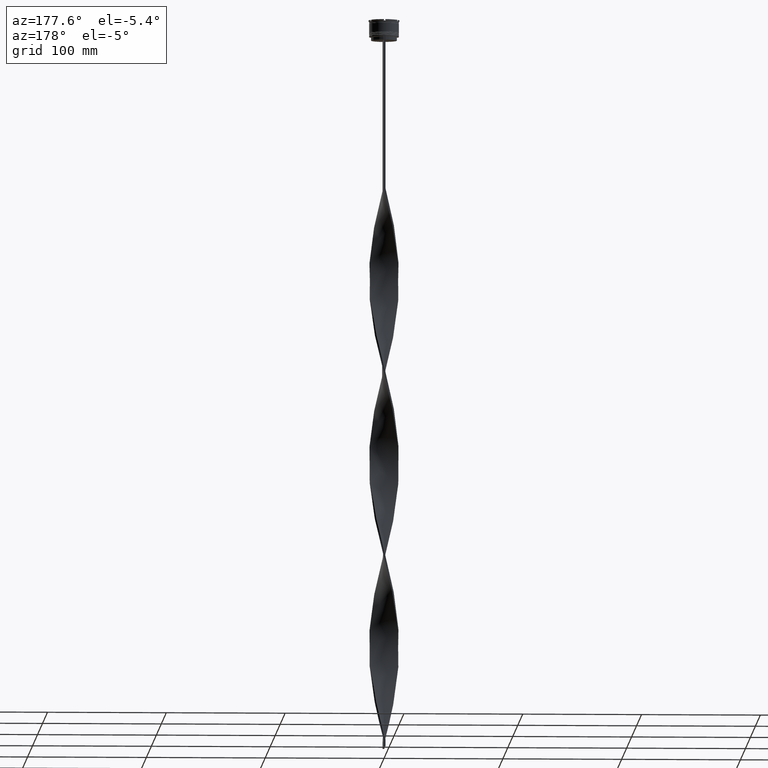
[diagram: clean part render]
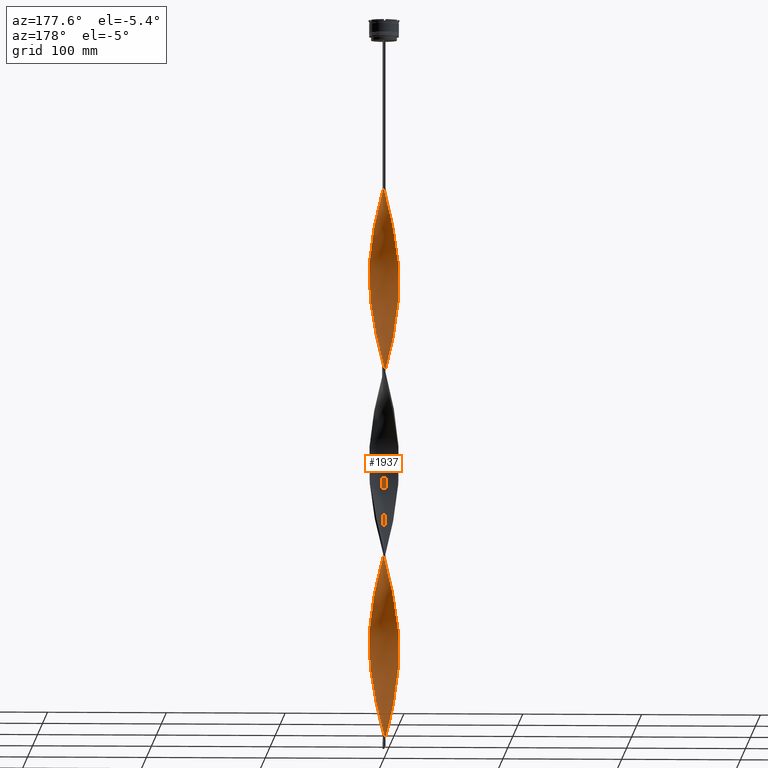
[diagram: same view with one face highlighted and labeled with its STEP entity id]
A machine part, auxiliary view. The second image highlights one B-rep face of the part: STEP entity #1937.
In plain terms, the highlighted face is a freeform B-spline surface patch.
Its self-contained STEP definition (entity closure, byte-faithful):
#12 = CARTESIAN_POINT ( 'NONE',  ( -9.690996458280331183, -7.969804989054253497, -407.0666666666666629 ) ) ;
#18 = CARTESIAN_POINT ( 'NONE',  ( -10.10948352700888542, -7.389914939776780933, -565.5066666666666606 ) ) ;
#37 = CARTESIAN_POINT ( 'NONE',  ( -8.010112353542544028, -9.625518172214164281, -416.3866666666666561 ) ) ;
#39 = CARTESIAN_POINT ( 'NONE',  ( -11.33752076354115701, -5.375297838653134264, -556.1866666666668380 ) ) ;
#45 = CARTESIAN_POINT ( 'NONE',  ( 9.103565294674670128, -8.598697513321127417, -180.2800000000000296 ) ) ;
#54 = FACE_OUTER_BOUND ( 'NONE', #1408, .T. ) ;
#67 = CARTESIAN_POINT ( 'NONE',  ( -9.153347542385844804, -8.545684803940465812, -410.1733333333334031 ) ) ;
#73 = CARTESIAN_POINT ( 'NONE',  ( -3.085069550408703787, 12.16205368295572953, -307.6533333333334213 ) ) ;
#77 = CARTESIAN_POINT ( 'NONE',  ( 10.57441756647771136, 6.753880147568771086, -407.0666666666666629 ) ) ;
#89 = CARTESIAN_POINT ( 'NONE',  ( 12.42824121570641083, 1.533401540437621557, -223.7733333333333405 ) ) ;
#99 = CARTESIAN_POINT ( 'NONE',  ( -1.536433340670619652, -12.45281399955976553, -605.8933333333335440 ) ) ;
#100 = CARTESIAN_POINT ( 'NONE',  ( 8.562581101809282558, 9.171445294657461389, -419.4933333333333962 ) ) ;
#121 = CARTESIAN_POINT ( 'NONE',  ( 10.61346148680155110, 6.692356773673695081, -245.5200000000000387 ) ) ;
#124 = CARTESIAN_POINT ( 'NONE',  ( 4.652802097321416142, -11.65266650003840709, -320.0800000000000978 ) ) ;
#148 = CARTESIAN_POINT ( 'NONE',  ( -2.310751445539660054, -12.30743384125774575, -602.7866666666667470 ) ) ;
#150 = CARTESIAN_POINT ( 'NONE',  ( 12.52242699500038015, 0.03636144779521762599, -379.1066666666666833 ) ) ;
#153 = CARTESIAN_POINT ( 'NONE',  ( -1.608725446465267606, 12.44368138276816538, -152.3200000000000500 ) ) ;
#159 = CARTESIAN_POINT ( 'NONE',  ( 8.562581101809284334, -9.171445294657459613, -177.1733333333333462 ) ) ;
#173 = CARTESIAN_POINT ( 'NONE',  ( -9.644549487540052368, 8.025949731984795221, -338.7200000000000273 ) ) ;
#175 = CARTESIAN_POINT ( 'NONE',  ( 12.11996919947063311, 3.149420042465475245, -391.5333333333334167 ) ) ;
#178 = CARTESIAN_POINT ( 'NONE',  ( -7.954078399437126912, -9.671873490467486789, -267.2666666666667084 ) ) ;
#183 = CARTESIAN_POINT ( 'NONE',  ( 9.644549487540052368, -8.025949731984795221, -183.3866666666666845 ) ) ;
#196 = CARTESIAN_POINT ( 'NONE',  ( -6.740552907874703514, 10.55355136890620038, -484.7333333333333485 ) ) ;
#198 = CARTESIAN_POINT ( 'NONE',  ( 11.65644370790820794, -4.576004816908210593, -360.4666666666666970 ) ) ;
#205 = CARTESIAN_POINT ( 'NONE',  ( -9.644549487540052368, 8.025949731984795221, -338.7200000000000273 ) ) ;
#223 = CARTESIAN_POINT ( 'NONE',  ( -4.652802097321417030, 11.65266650003840709, -475.4133333333333553 ) ) ;
#225 = CARTESIAN_POINT ( 'NONE',  ( -12.52013932661148488, -0.8242057753937852560, -226.8800000000000523 ) ) ;
#231 = CARTESIAN_POINT ( 'NONE',  ( 7.404526080593734960, 10.12947172560163978, -264.1600000000000819 ) ) ;
#247 = CARTESIAN_POINT ( 'NONE',  ( -7.345575697064968601, -10.17230168627752107, -270.3733333333333348 ) ) ;
#254 = CARTESIAN_POINT ( 'NONE',  ( -6.679150936304340647, 10.59251824497200900, -323.1866666666667243 ) ) ;
#259 = CARTESIAN_POINT ( 'NONE',  ( -12.52471466338928074, -0.7514828798033545976, -376.0000000000000568 ) ) ;
#271 = CARTESIAN_POINT ( 'NONE',  ( -11.92182448545694129, -3.911943871774656412, -239.3066666666667288 ) ) ;
#280 = CARTESIAN_POINT ( 'NONE',  ( -0.8225793935679445168, 12.49543369160420347, -149.2133333333333383 ) ) ;
#284 = CARTESIAN_POINT ( 'NONE',  ( -7.345575697064969489, 10.17230168627751929, -326.2933333333333508 ) ) ;
#299 = CARTESIAN_POINT ( 'NONE',  ( -9.644549487540050592, -8.025949731984796998, -568.6133333333333439 ) ) ;
#311 = CARTESIAN_POINT ( 'NONE',  ( -11.92182448545694129, -3.911943871774655967, -239.3066666666667288 ) ) ;
#314 = CARTESIAN_POINT ( 'NONE',  ( -10.95596916500943863, 6.064588993110942461, -348.0400000000000205 ) ) ;
#324 = CARTESIAN_POINT ( 'NONE',  ( -5.364690916238543217, 11.31514875612458226, -478.5200000000000387 ) ) ;
#333 = CARTESIAN_POINT ( 'NONE',  ( -11.36854588750133388, 5.309366094152151661, -202.0266666666667277 ) ) ;
#337 = CARTESIAN_POINT ( 'NONE',  ( 12.31811391348432316, -2.386896213156298963, -518.9066666666665242 ) ) ;
#342 = CARTESIAN_POINT ( 'NONE',  ( 11.62967262449904915, -4.643620855213893783, -509.5866666666666447 ) ) ;
#344 = CARTESIAN_POINT ( 'NONE',  ( -4.652802097321417030, 11.65266650003840709, -475.4133333333333553 ) ) ;
#354 = CARTESIAN_POINT ( 'NONE',  ( -2.382186218714211545, 12.29380692948152820, -155.4266666666666765 ) ) ;
#358 = CARTESIAN_POINT ( 'NONE',  ( 10.99100368715144072, 6.000861433912924703, -553.0800000000000409 ) ) ;
#362 = CARTESIAN_POINT ( 'NONE',  ( 10.95596916500943863, -6.064588993110946014, -503.3733333333334485 ) ) ;
#368 = CARTESIAN_POINT ( 'NONE',  ( 4.585052370405608535, 11.67949051451277320, -438.1333333333334394 ) ) ;
#383 = CARTESIAN_POINT ( 'NONE',  ( 7.404526080593734960, 10.12947172560163978, -574.8266666666665969 ) ) ;
#387 = CARTESIAN_POINT ( 'NONE',  ( 11.65644370790820794, 4.576004816908210593, -546.8666666666666742 ) ) ;
#392 = CARTESIAN_POINT ( 'NONE',  ( -11.33752076354115701, -5.375297838653134264, -556.1866666666668380 ) ) ;
#407 = CARTESIAN_POINT ( 'NONE',  ( -11.33752076354115879, 5.375297838653132487, -351.1466666666667038 ) ) ;
#413 = CARTESIAN_POINT ( 'NONE',  ( 1.608725446465266717, 12.44368138276816538, -289.0133333333333212 ) ) ;
#431 = CARTESIAN_POINT ( 'NONE',  ( 9.103565294674670128, -8.598697513321127417, -490.9466666666667152 ) ) ;
#440 = CARTESIAN_POINT ( 'NONE',  ( 11.94434152831508911, 3.842643539664265528, -233.0933333333333906 ) ) ;
#442 = CARTESIAN_POINT ( 'NONE',  ( 11.62967262449904915, 4.643620855213893783, -397.7466666666666697 ) ) ;
#458 = CARTESIAN_POINT ( 'NONE',  ( 3.155646990963151932, 12.14393247619489813, -593.4666666666666970 ) ) ;
#465 = CARTESIAN_POINT ( 'NONE',  ( -5.298889272974661502, -11.34611265908963595, -590.3600000000000136 ) ) ;
#468 = CARTESIAN_POINT ( 'NONE',  ( 12.31811391348432316, 2.386896213156301183, -388.4266666666667334 ) ) ;
#475 = CARTESIAN_POINT ( 'NONE',  ( -0.7499999999999962252, -12.50000000000000000, -609.0000000000000000 ) ) ;
#477 = ORIENTED_EDGE ( 'NONE', *, *, #2153, .T. ) ;
#489 = CARTESIAN_POINT ( 'NONE',  ( 11.36854588750133388, 5.309366094152153437, -239.3066666666667288 ) ) ;
#490 = CARTESIAN_POINT ( 'NONE',  ( 10.61346148680155110, -6.692356773673693304, -351.1466666666667038 ) ) ;
#505 = CARTESIAN_POINT ( 'NONE',  ( 5.364690916238542329, 11.31514875612458226, -584.1466666666666470 ) ) ;
#507 = CARTESIAN_POINT ( 'NONE',  ( -6.012726175543710028, -11.01273480366650048, -587.2533333333335577 ) ) ;
#511 = CARTESIAN_POINT ( 'NONE',  ( 7.404526080593734960, 10.12947172560163978, -264.1600000000000819 ) ) ;
#514 = CARTESIAN_POINT ( 'NONE',  ( 9.690996458280336512, -7.969804989054249056, -344.9333333333334508 ) ) ;
#525 = CARTESIAN_POINT ( 'NONE',  ( 0.7500000000000002220, -12.50000000000000000, -143.0000000000000284 ) ) ;
#540 = CARTESIAN_POINT ( 'NONE',  ( 10.57441756647771847, -6.753880147568761316, -500.2666666666666515 ) ) ;
#542 = CARTESIAN_POINT ( 'NONE',  ( 8.010112353542551134, -9.625518172214162504, -335.6133333333334008 ) ) ;
#545 = CARTESIAN_POINT ( 'NONE',  ( 4.652802097321416142, -11.65266650003840709, -320.0800000000000978 ) ) ;
#557 = CARTESIAN_POINT ( 'NONE',  ( 9.153347542385848357, 8.545684803940464036, -565.5066666666666606 ) ) ;
#565 = CARTESIAN_POINT ( 'NONE',  ( -11.94434152831508911, 3.842643539664264196, -518.9066666666666379 ) ) ;
#568 = CARTESIAN_POINT ( 'NONE',  ( -12.41912662004790313, -1.605550994275043664, -229.9866666666666788 ) ) ;
#573 = CARTESIAN_POINT ( 'NONE',  ( 5.364690916238542329, 11.31514875612458226, -273.4800000000000750 ) ) ;
#589 = CARTESIAN_POINT ( 'NONE',  ( -9.690996458280338288, 7.969804989054245503, -500.2666666666666515 ) ) ;
#593 = CARTESIAN_POINT ( 'NONE',  ( 12.52013932661148665, 0.8242057753937834796, -382.2133333333333667 ) ) ;
#600 = CARTESIAN_POINT ( 'NONE',  ( -10.95596916500943863, 6.064588993110942461, -348.0400000000000205 ) ) ;
#617 = CARTESIAN_POINT ( 'NONE',  ( -12.42824121570641083, 1.533401540437620225, -528.2266666666666879 ) ) ;
#619 = CARTESIAN_POINT ( 'NONE',  ( -12.33176776802354802, 2.315320201071886519, -214.4533333333333758 ) ) ;
#627 = CARTESIAN_POINT ( 'NONE',  ( 0.8225793935679426294, 12.49543369160420347, -292.1200000000000614 ) ) ;
#632 = CARTESIAN_POINT ( 'NONE',  ( -4.652802097321410812, -11.65266650003840887, -431.9200000000000728 ) ) ;
#641 = CARTESIAN_POINT ( 'NONE',  ( 3.155646990963159038, -12.14393247619489813, -313.8666666666666742 ) ) ;
#649 = CARTESIAN_POINT ( 'NONE',  ( -5.364690916238543217, 11.31514875612458226, -167.8533333333333530 ) ) ;
#651 = CARTESIAN_POINT ( 'NONE',  ( -10.57441756647771669, 6.753880147568764869, -344.9333333333334508 ) ) ;
#660 = CARTESIAN_POINT ( 'NONE',  ( -10.95596916500943685, -6.064588993110949566, -559.2933333333334076 ) ) ;
#668 = CARTESIAN_POINT ( 'NONE',  ( -12.41912662004790313, -1.605550994275043664, -229.9866666666666788 ) ) ;
#673 = CARTESIAN_POINT ( 'NONE',  ( 3.085069550408702010, -12.16205368295573130, -462.9866666666666788 ) ) ;
#684 = CARTESIAN_POINT ( 'NONE',  ( -10.99100368715144072, 6.000861433912922926, -509.5866666666666447 ) ) ;
#694 = CARTESIAN_POINT ( 'NONE',  ( -1.608725446465267606, 12.44368138276816538, -152.3200000000000500 ) ) ;
#697 = CARTESIAN_POINT ( 'NONE',  ( -5.298889272974667719, 11.34611265908963240, -316.9733333333333576 ) ) ;
#705 = CARTESIAN_POINT ( 'NONE',  ( -1.608725446465267606, 12.44368138276816538, -462.9866666666666788 ) ) ;
#712 = CARTESIAN_POINT ( 'NONE',  ( -10.99100368715144072, 6.000861433912922926, -198.9200000000000159 ) ) ;
#713 = CARTESIAN_POINT ( 'NONE',  ( -0.7499999999999988898, -4.166666666666667851, -609.0000000000000000 ) ) ;
#719 = CARTESIAN_POINT ( 'NONE',  ( 12.52471466338928074, 0.7514828798033589274, -531.3333333333335986 ) ) ;
#724 = CARTESIAN_POINT ( 'NONE',  ( -6.076579735155669404, 10.97763101221075921, -481.6266666666667788 ) ) ;
#734 = CARTESIAN_POINT ( 'NONE',  ( -5.298889272974661502, -11.34611265908963595, -279.6933333333333280 ) ) ;
#738 = CARTESIAN_POINT ( 'NONE',  ( 12.41912662004790313, -1.605550994275039667, -522.0133333333334349 ) ) ;
#741 = CARTESIAN_POINT ( 'NONE',  ( 11.92182448545694129, -3.911943871774654191, -512.6933333333334986 ) ) ;
#746 = CARTESIAN_POINT ( 'NONE',  ( -11.36854588750133388, 5.309366094152151661, -512.6933333333333849 ) ) ;
#755 = VECTOR ( 'NONE', #1967, 1000.000000000000000 ) ;
#766 = CARTESIAN_POINT ( 'NONE',  ( 12.11996919947063134, -3.149420042465478353, -515.8000000000000682 ) ) ;
#770 = CARTESIAN_POINT ( 'NONE',  ( -12.52242699500038015, 0.03636144779521122833, -372.8933333333333735 ) ) ;
#771 = CARTESIAN_POINT ( 'NONE',  ( -3.835060960407159047, -11.92077209873424870, -596.5733333333333803 ) ) ;
#775 = CARTESIAN_POINT ( 'NONE',  ( 3.904224544142283371, 11.89829948811665261, -279.6933333333333280 ) ) ;
#795 = CARTESIAN_POINT ( 'NONE',  ( 6.679150936304339758, -10.59251824497200900, -478.5200000000000387 ) ) ;
#801 = CARTESIAN_POINT ( 'NONE',  ( -0.7500000000000042188, 12.50000000000000000, -298.3333333333333144 ) ) ;
#807 = CARTESIAN_POINT ( 'NONE',  ( -6.076579735155669404, 10.97763101221075921, -170.9600000000000080 ) ) ;
#813 = CARTESIAN_POINT ( 'NONE',  ( 8.010112353542547581, 9.625518172214162504, -571.7200000000000273 ) ) ;
#820 = CARTESIAN_POINT ( 'NONE',  ( 11.33752076354116056, -5.375297838653129823, -506.4800000000001319 ) ) ;
#828 = CARTESIAN_POINT ( 'NONE',  ( 0.7500000000000002220, -12.50000000000000000, -143.0000000000000284 ) ) ;
#829 = VERTEX_POINT ( 'NONE', #1036 ) ;
#831 = CARTESIAN_POINT ( 'NONE',  ( 6.679150936304339758, 10.59251824497200900, -428.8133333333333894 ) ) ;
#848 = CARTESIAN_POINT ( 'NONE',  ( -0.7500000000000042188, 12.50000000000000000, -609.0000000000000000 ) ) ;
#855 = CARTESIAN_POINT ( 'NONE',  ( 12.41912662004790313, -1.605550994275039667, -211.3466666666666924 ) ) ;
#856 = CARTESIAN_POINT ( 'NONE',  ( -10.95596916500943685, -6.064588993110949566, -248.6266666666666936 ) ) ;
#863 = CARTESIAN_POINT ( 'NONE',  ( 12.41912662004790313, -1.605550994275039667, -211.3466666666666924 ) ) ;
#868 = CARTESIAN_POINT ( 'NONE',  ( 6.740552907874705291, 10.55355136890619860, -577.9333333333333940 ) ) ;
#874 = CARTESIAN_POINT ( 'NONE',  ( 8.615698626491363754, 9.121564618826683457, -257.9466666666666583 ) ) ;
#877 = CARTESIAN_POINT ( 'NONE',  ( 12.41912662004790313, 1.605550994275047660, -385.3199999999999932 ) ) ;
#890 = CARTESIAN_POINT ( 'NONE',  ( 10.99100368715144072, 6.000861433912924703, -553.0800000000000409 ) ) ;
#896 = CARTESIAN_POINT ( 'NONE',  ( -0.8225793935679387436, -12.49543369160420170, -447.4533333333333758 ) ) ;
#899 = CARTESIAN_POINT ( 'NONE',  ( 12.52013932661148488, 0.8242057753937834796, -382.2133333333334235 ) ) ;
#903 = CARTESIAN_POINT ( 'NONE',  ( -9.644549487540050592, -8.025949731984796998, -257.9466666666666583 ) ) ;
#928 = CARTESIAN_POINT ( 'NONE',  ( -12.13805464816931767, 3.078981870368073359, -522.0133333333334349 ) ) ;
#931 = CARTESIAN_POINT ( 'NONE',  ( 9.690996458280336512, -7.969804989054249056, -344.9333333333334508 ) ) ;
#936 = CARTESIAN_POINT ( 'NONE',  ( 12.13805464816931412, 3.078981870368077356, -229.9866666666666788 ) ) ;
#943 = CARTESIAN_POINT ( 'NONE',  ( 11.36854588750133388, 5.309366094152153437, -549.9733333333334713 ) ) ;
#952 = CARTESIAN_POINT ( 'NONE',  ( -3.904224544142286035, 11.89829948811665083, -472.3066666666667288 ) ) ;
#954 = CARTESIAN_POINT ( 'NONE',  ( 12.42824121570641083, -1.533401540437619115, -372.8933333333333735 ) ) ;
#959 = CARTESIAN_POINT ( 'NONE',  ( 1.608725446465266717, 12.44368138276816538, -289.0133333333333212 ) ) ;
#976 = CARTESIAN_POINT ( 'NONE',  ( -11.36854588750133388, 5.309366094152151661, -512.6933333333334986 ) ) ;
#979 = CARTESIAN_POINT ( 'NONE',  ( -8.562581101809282558, -9.171445294657461389, -264.1600000000000819 ) ) ;
#986 = CARTESIAN_POINT ( 'NONE',  ( -5.298889272974667719, 11.34611265908963240, -316.9733333333333576 ) ) ;
#992 = CARTESIAN_POINT ( 'NONE',  ( 11.33752076354116056, -5.375297838653129823, -506.4800000000001887 ) ) ;
#1005 = CARTESIAN_POINT ( 'NONE',  ( -4.585052370405612976, -11.67949051451277143, -282.8000000000000682 ) ) ;
#1014 = CARTESIAN_POINT ( 'NONE',  ( -9.153347542385848357, 8.545684803940464036, -186.4933333333333394 ) ) ;
#1018 = CARTESIAN_POINT ( 'NONE',  ( -6.012726175543712692, 11.01273480366649871, -320.0800000000000978 ) ) ;
#1027 = CARTESIAN_POINT ( 'NONE',  ( 3.085069550408702455, 12.16205368295573130, -444.3466666666667493 ) ) ;
#1036 = CARTESIAN_POINT ( 'NONE',  ( -0.7500000000000042188, 12.50000000000000000, -609.0000000000000000 ) ) ;
#1040 = CARTESIAN_POINT ( 'NONE',  ( 3.835060960407158603, -11.92077209873424870, -466.0933333333333621 ) ) ;
#1048 = CARTESIAN_POINT ( 'NONE',  ( 2.310751445539656057, 12.30743384125774753, -447.4533333333333758 ) ) ;
#1064 = CARTESIAN_POINT ( 'NONE',  ( 7.954078399437126023, -9.671873490467488566, -484.7333333333333485 ) ) ;
#1065 = ORIENTED_EDGE ( 'NONE', *, *, #1336, .F. ) ;
#1074 = CARTESIAN_POINT ( 'NONE',  ( 7.954078399437118918, 9.671873490467493895, -422.6000000000000227 ) ) ;
#1082 = CARTESIAN_POINT ( 'NONE',  ( -0.03643334067062180964, 12.54718600044023979, -146.1066666666667118 ) ) ;
#1089 = CARTESIAN_POINT ( 'NONE',  ( -4.652802097321410812, -11.65266650003840887, -431.9200000000000728 ) ) ;
#1094 = CARTESIAN_POINT ( 'NONE',  ( -0.8225793935679445168, 12.49543369160420347, -459.8799999999999955 ) ) ;
#1100 = CARTESIAN_POINT ( 'NONE',  ( -9.690996458280338288, 7.969804989054245503, -189.6000000000000227 ) ) ;
#1103 = CARTESIAN_POINT ( 'NONE',  ( 0.03643334067061888837, 12.54718600044023979, -605.8933333333335440 ) ) ;
#1107 = CARTESIAN_POINT ( 'NONE',  ( 10.57441756647771847, -6.753880147568761316, -500.2666666666666515 ) ) ;
#1113 = CARTESIAN_POINT ( 'NONE',  ( 9.644549487540052368, 8.025949731984795221, -413.2800000000000864 ) ) ;
#1134 = CARTESIAN_POINT ( 'NONE',  ( 4.585052370405615640, -11.67949051451277143, -469.2000000000001023 ) ) ;
#1140 = CARTESIAN_POINT ( 'NONE',  ( 10.99100368715144072, 6.000861433912924703, -242.4133333333333553 ) ) ;
#1156 = CARTESIAN_POINT ( 'NONE',  ( 12.52242699500038015, -0.03636144779521242182, -528.2266666666666879 ) ) ;
#1160 = CARTESIAN_POINT ( 'NONE',  ( 1.536433340670622316, -12.45281399955976553, -456.7733333333334258 ) ) ;
#1166 = CARTESIAN_POINT ( 'NONE',  ( -6.012726175543710916, -11.01273480366650048, -587.2533333333335577 ) ) ;
#1172 = CARTESIAN_POINT ( 'NONE',  ( -2.382186218714211545, 12.29380692948152820, -155.4266666666666765 ) ) ;
#1186 = CARTESIAN_POINT ( 'NONE',  ( 3.085069550408702010, -12.16205368295573130, -462.9866666666667356 ) ) ;
#1192 = CARTESIAN_POINT ( 'NONE',  ( 7.345575697064968601, -10.17230168627752107, -170.9600000000000080 ) ) ;
#1194 = CARTESIAN_POINT ( 'NONE',  ( 9.103565294674663022, 8.598697513321132746, -416.3866666666666561 ) ) ;
#1204 = CARTESIAN_POINT ( 'NONE',  ( 11.94434152831508911, 3.842643539664265084, -233.0933333333333906 ) ) ;
#1215 = CARTESIAN_POINT ( 'NONE',  ( -1.536433340670619652, -12.45281399955976553, -605.8933333333335440 ) ) ;
#1219 = CARTESIAN_POINT ( 'NONE',  ( -3.085069550408701122, -12.16205368295573130, -599.6799999999999500 ) ) ;
#1222 = CARTESIAN_POINT ( 'NONE',  ( 9.644549487540052368, 8.025949731984795221, -413.2800000000000864 ) ) ;
#1246 = CARTESIAN_POINT ( 'NONE',  ( -0.7499999999999962252, -12.50000000000000000, -609.0000000000000000 ) ) ;
#1248 = CARTESIAN_POINT ( 'NONE',  ( 5.364690916238544105, -11.31514875612458226, -323.1866666666667243 ) ) ;
#1251 = CARTESIAN_POINT ( 'NONE',  ( 0.7500000000000002220, 12.50000000000000000, -143.0000000000000284 ) ) ;
#1259 = CARTESIAN_POINT ( 'NONE',  ( 3.904224544142283371, 11.89829948811665261, -590.3600000000000136 ) ) ;
#1265 = CARTESIAN_POINT ( 'NONE',  ( -8.010112353542544028, -9.625518172214164281, -416.3866666666666561 ) ) ;
#1268 = CARTESIAN_POINT ( 'NONE',  ( -3.085069550408701122, -12.16205368295573130, -289.0133333333333212 ) ) ;
#1293 = CARTESIAN_POINT ( 'NONE',  ( -2.310751445539660054, -12.30743384125774575, -292.1200000000000614 ) ) ;
#1297 = CARTESIAN_POINT ( 'NONE',  ( 2.382186218714214210, -12.29380692948152820, -310.7600000000000477 ) ) ;
#1305 = CARTESIAN_POINT ( 'NONE',  ( 12.52471466338928074, 0.7514828798033589274, -220.6666666666667140 ) ) ;
#1324 = CARTESIAN_POINT ( 'NONE',  ( -12.11996919947063134, -3.149420042465479241, -546.8666666666666742 ) ) ;
#1326 = CARTESIAN_POINT ( 'NONE',  ( -12.13805464816931767, 3.078981870368073359, -211.3466666666666924 ) ) ;
#1332 = CARTESIAN_POINT ( 'NONE',  ( -10.57441756647771669, 6.753880147568764869, -344.9333333333334508 ) ) ;
#1336 = EDGE_CURVE ( 'NONE', #1677, #829, #2911, .T. ) ;
#1346 = CARTESIAN_POINT ( 'NONE',  ( -6.076579735155670292, 10.97763101221075743, -481.6266666666667788 ) ) ;
#1348 = CARTESIAN_POINT ( 'NONE',  ( -3.835060960407159047, -11.92077209873424870, -285.9066666666666947 ) ) ;
#1353 = CARTESIAN_POINT ( 'NONE',  ( -0.7500000000000042188, 12.50000000000000000, -298.3333333333333144 ) ) ;
#1359 = CARTESIAN_POINT ( 'NONE',  ( -11.62967262449905270, 4.643620855213886678, -354.2533333333333871 ) ) ;
#1370 = CARTESIAN_POINT ( 'NONE',  ( 1.608725446465269382, -12.44368138276816360, -307.6533333333334213 ) ) ;
#1378 = CARTESIAN_POINT ( 'NONE',  ( -3.155646990963155485, 12.14393247619489813, -158.5333333333333883 ) ) ;
#1382 = CARTESIAN_POINT ( 'NONE',  ( -1.608725446465268050, -12.44368138276816538, -444.3466666666667493 ) ) ;
#1396 = CARTESIAN_POINT ( 'NONE',  ( -12.52242699500038015, -0.03636144779521361531, -223.7733333333333405 ) ) ;
#1404 = CARTESIAN_POINT ( 'NONE',  ( -12.52471466338928074, 0.7514828798033548196, -220.6666666666667140 ) ) ;
#1407 = CARTESIAN_POINT ( 'NONE',  ( -3.904224544142285147, -11.89829948811665261, -435.0266666666667561 ) ) ;
#1408 = EDGE_LOOP ( 'NONE', ( #4341, #477, #1065, #2464 ) ) ;
#1416 = CARTESIAN_POINT ( 'NONE',  ( -7.954078399437126912, -9.671873490467486789, -577.9333333333333940 ) ) ;
#1429 = CARTESIAN_POINT ( 'NONE',  ( -11.36854588750133033, -5.309366094152156101, -394.6399999999999864 ) ) ;
#1437 = CARTESIAN_POINT ( 'NONE',  ( -9.153347542385848357, 8.545684803940464036, -497.1600000000000250 ) ) ;
#1454 = CARTESIAN_POINT ( 'NONE',  ( 1.608725446465266717, 12.44368138276816538, -599.6799999999999500 ) ) ;
#1460 = CARTESIAN_POINT ( 'NONE',  ( -0.03643334067062040105, -12.54718600044023979, -450.5600000000000023 ) ) ;
#1466 = CARTESIAN_POINT ( 'NONE',  ( 10.95596916500943685, 6.064588993110948678, -403.9600000000000364 ) ) ;
#1474 = CARTESIAN_POINT ( 'NONE',  ( -8.010112353542551134, 9.625518172214162504, -180.2800000000000296 ) ) ;
#1483 = CARTESIAN_POINT ( 'NONE',  ( -10.99100368715144072, -6.000861433912922926, -397.7466666666666697 ) ) ;
#1488 = CARTESIAN_POINT ( 'NONE',  ( -12.52013932661148488, -0.8242057753937852560, -537.5466666666667379 ) ) ;
#1503 = CARTESIAN_POINT ( 'NONE',  ( -11.92182448545694129, 3.911943871774654191, -357.3600000000000705 ) ) ;
#1509 = CARTESIAN_POINT ( 'NONE',  ( -7.404526080593738513, 10.12947172560163800, -487.8400000000000887 ) ) ;
#1513 = LINE ( 'NONE', #4176, #755 ) ;
#1528 = CARTESIAN_POINT ( 'NONE',  ( -6.076579735155665851, -10.97763101221075743, -425.7066666666667061 ) ) ;
#1536 = CARTESIAN_POINT ( 'NONE',  ( 12.31811391348432316, -2.386896213156298963, -208.2400000000000659 ) ) ;
#1556 = CARTESIAN_POINT ( 'NONE',  ( -5.364690916238543217, -11.31514875612458226, -428.8133333333333894 ) ) ;
#1559 = CARTESIAN_POINT ( 'NONE',  ( -8.562581101809280781, -9.171445294657461389, -574.8266666666667106 ) ) ;
#1561 = CARTESIAN_POINT ( 'NONE',  ( -3.835060960407161712, 11.92077209873424870, -310.7600000000000477 ) ) ;
#1563 = CARTESIAN_POINT ( 'NONE',  ( -6.679150936304338870, -10.59251824497200900, -273.4800000000000750 ) ) ;
#1578 = CARTESIAN_POINT ( 'NONE',  ( -6.679150936304338870, -10.59251824497200900, -584.1466666666666470 ) ) ;
#1581 = CARTESIAN_POINT ( 'NONE',  ( 10.57441756647771847, -6.753880147568761316, -189.6000000000000227 ) ) ;
#1582 = CARTESIAN_POINT ( 'NONE',  ( 3.904224544142290032, -11.89829948811664906, -316.9733333333333576 ) ) ;
#1592 = CARTESIAN_POINT ( 'NONE',  ( 1.536433340670622316, -12.45281399955976553, -146.1066666666667118 ) ) ;
#1608 = CARTESIAN_POINT ( 'NONE',  ( 9.690996458280338288, 7.969804989054246391, -251.7333333333334338 ) ) ;
#1611 = CARTESIAN_POINT ( 'NONE',  ( 11.94434152831509088, -3.842643539664260199, -363.5733333333334372 ) ) ;
#1633 = CARTESIAN_POINT ( 'NONE',  ( -12.42824121570641083, -1.533401540437625332, -379.1066666666666833 ) ) ;
#1634 = CARTESIAN_POINT ( 'NONE',  ( -10.57441756647771847, -6.753880147568761316, -251.7333333333334338 ) ) ;
#1638 = CARTESIAN_POINT ( 'NONE',  ( -4.652802097321417030, 11.65266650003840709, -164.7466666666667265 ) ) ;
#1643 = CARTESIAN_POINT ( 'NONE',  ( 7.954078399437126023, -9.671873490467488566, -174.0666666666666629 ) ) ;
#1656 = CARTESIAN_POINT ( 'NONE',  ( -12.13805464816931412, -3.078981870368081353, -385.3199999999999932 ) ) ;
#1658 = CARTESIAN_POINT ( 'NONE',  ( -4.585052370405612088, -11.67949051451277143, -282.8000000000000682 ) ) ;
#1662 = CARTESIAN_POINT ( 'NONE',  ( 6.076579735155670292, -10.97763101221075743, -326.2933333333333508 ) ) ;
#1668 = CARTESIAN_POINT ( 'NONE',  ( 11.92182448545694129, -3.911943871774654191, -202.0266666666667277 ) ) ;
#1677 = VERTEX_POINT ( 'NONE', #475 ) ;
#1687 = CARTESIAN_POINT ( 'NONE',  ( 1.536433340670620984, 12.45281399955976553, -450.5600000000000023 ) ) ;
#1690 = CARTESIAN_POINT ( 'NONE',  ( -9.690996458280338288, 7.969804989054246391, -189.6000000000000227 ) ) ;
#1699 = CARTESIAN_POINT ( 'NONE',  ( -10.10948352700888542, 7.389914939776777381, -341.8266666666667106 ) ) ;
#1716 = CARTESIAN_POINT ( 'NONE',  ( -8.615698626491365530, 9.121564618826681681, -494.0533333333333985 ) ) ;
#1718 = CARTESIAN_POINT ( 'NONE',  ( -11.62967262449904915, -4.643620855213893783, -242.4133333333333553 ) ) ;
#1724 = CARTESIAN_POINT ( 'NONE',  ( 4.652802097321414365, 11.65266650003840887, -276.5866666666667584 ) ) ;
#1739 = CARTESIAN_POINT ( 'NONE',  ( -10.95596916500943685, -6.064588993110949566, -248.6266666666666936 ) ) ;
#1745 = CARTESIAN_POINT ( 'NONE',  ( 6.740552907874705291, 10.55355136890619860, -267.2666666666667084 ) ) ;
#1750 = CARTESIAN_POINT ( 'NONE',  ( 2.310751445539661830, -12.30743384125774575, -459.8799999999999955 ) ) ;
#1762 = CARTESIAN_POINT ( 'NONE',  ( 5.364690916238544105, -11.31514875612458226, -323.1866666666667243 ) ) ;
#1773 = CARTESIAN_POINT ( 'NONE',  ( -12.13805464816931767, 3.078981870368073359, -211.3466666666666924 ) ) ;
#1777 = CARTESIAN_POINT ( 'NONE',  ( -8.615698626491365530, -9.121564618826681681, -413.2800000000000864 ) ) ;
#1791 = CARTESIAN_POINT ( 'NONE',  ( -9.103565294674666575, -8.598697513321130970, -571.7200000000000273 ) ) ;
#1799 = CARTESIAN_POINT ( 'NONE',  ( -11.62967262449904915, -4.643620855213893783, -242.4133333333333553 ) ) ;
#1802 = CARTESIAN_POINT ( 'NONE',  ( -12.11996919947063134, 3.149420042465479241, -360.4666666666666970 ) ) ;
#1811 = CARTESIAN_POINT ( 'NONE',  ( -7.345575697064968601, -10.17230168627752107, -581.0400000000000773 ) ) ;
#1822 = CARTESIAN_POINT ( 'NONE',  ( 4.652802097321414365, 11.65266650003840887, -587.2533333333335577 ) ) ;
#1827 = CARTESIAN_POINT ( 'NONE',  ( 12.41912662004790313, -1.605550994275039667, -522.0133333333334349 ) ) ;
#1831 = CARTESIAN_POINT ( 'NONE',  ( 3.835060960407154607, 11.92077209873424870, -441.2400000000000091 ) ) ;
#1844 = CARTESIAN_POINT ( 'NONE',  ( -11.94434152831508911, 3.842643539664264196, -208.2400000000000659 ) ) ;
#1854 = CARTESIAN_POINT ( 'NONE',  ( -6.740552907874695521, -10.55355136890620216, -422.6000000000000227 ) ) ;
#1860 = CARTESIAN_POINT ( 'NONE',  ( 6.012726175543707363, 11.01273480366650048, -431.9200000000000728 ) ) ;
#1874 = CARTESIAN_POINT ( 'NONE',  ( 12.52471466338928074, 0.7514828798033589274, -531.3333333333334849 ) ) ;
#1878 = CARTESIAN_POINT ( 'NONE',  ( 12.31811391348432316, -2.386896213156298963, -518.9066666666666379 ) ) ;
#1884 = CARTESIAN_POINT ( 'NONE',  ( -10.57441756647771847, -6.753880147568761316, -562.4000000000000909 ) ) ;
#1902 = CARTESIAN_POINT ( 'NONE',  ( -10.61346148680154755, -6.692356773673698633, -400.8533333333334099 ) ) ;
#1904 = CARTESIAN_POINT ( 'NONE',  ( -2.310751445539660054, -12.30743384125774575, -602.7866666666667470 ) ) ;
#1908 = CARTESIAN_POINT ( 'NONE',  ( 0.8225793935679426294, 12.49543369160420347, -292.1200000000000614 ) ) ;
#1926 = CARTESIAN_POINT ( 'NONE',  ( 6.740552907874705291, 10.55355136890619860, -577.9333333333333940 ) ) ;
#1931 = CARTESIAN_POINT ( 'NONE',  ( 10.10948352700888542, -7.389914939776779157, -497.1600000000000250 ) ) ;
#1937 = ADVANCED_FACE ( 'NONE', ( #54 ), #2236, .T. ) ;
#1940 = CARTESIAN_POINT ( 'NONE',  ( -6.679150936304338870, -10.59251824497200900, -584.1466666666666470 ) ) ;
#1943 = CARTESIAN_POINT ( 'NONE',  ( -9.644549487540050592, -8.025949731984796998, -257.9466666666666583 ) ) ;
#1957 = CARTESIAN_POINT ( 'NONE',  ( 0.03643334067061888837, 12.54718600044023979, -605.8933333333335440 ) ) ;
#1962 = CARTESIAN_POINT ( 'NONE',  ( 5.298889272974663278, -11.34611265908963418, -161.6400000000000148 ) ) ;
#1965 = CARTESIAN_POINT ( 'NONE',  ( 3.835060960407154607, 11.92077209873424870, -441.2400000000000091 ) ) ;
#1967 = DIRECTION ( 'NONE',  ( 0.000000000000000000, 1.000000000000000000, 0.000000000000000000 ) ) ;
#1974 = CARTESIAN_POINT ( 'NONE',  ( 7.345575697064968601, -10.17230168627752107, -170.9600000000000364 ) ) ;
#1985 = CARTESIAN_POINT ( 'NONE',  ( 10.95596916500943863, -6.064588993110946014, -192.7066666666667061 ) ) ;
#1986 = CARTESIAN_POINT ( 'NONE',  ( 0.8225793935679449609, -12.49543369160420347, -304.5466666666666811 ) ) ;
#2003 = CARTESIAN_POINT ( 'NONE',  ( 1.608725446465266717, 12.44368138276816538, -599.6799999999999500 ) ) ;
#2009 = CARTESIAN_POINT ( 'NONE',  ( 3.155646990963152376, 12.14393247619489813, -282.8000000000000682 ) ) ;
#2012 = CARTESIAN_POINT ( 'NONE',  ( 11.92182448545693774, 3.911943871774660408, -394.6400000000000432 ) ) ;
#2022 = CARTESIAN_POINT ( 'NONE',  ( 6.012726175543712692, -11.01273480366649871, -164.7466666666666981 ) ) ;
#2037 = CARTESIAN_POINT ( 'NONE',  ( -7.954078399437128688, 9.671873490467485013, -329.4000000000000341 ) ) ;
#2039 = CARTESIAN_POINT ( 'NONE',  ( 6.076579735155671180, -10.97763101221075743, -326.2933333333333508 ) ) ;
#2041 = CARTESIAN_POINT ( 'NONE',  ( 3.904224544142290032, -11.89829948811664906, -316.9733333333333576 ) ) ;
#2045 = CARTESIAN_POINT ( 'NONE',  ( 6.679150936304339758, -10.59251824497200900, -167.8533333333333530 ) ) ;
#2050 = CARTESIAN_POINT ( 'NONE',  ( 10.61346148680154933, 6.692356773673695081, -556.1866666666668380 ) ) ;
#2061 = CARTESIAN_POINT ( 'NONE',  ( -12.52013932661148310, -0.8242057753937852560, -537.5466666666667379 ) ) ;
#2064 = CARTESIAN_POINT ( 'NONE',  ( 10.99100368715144427, -6.000861433912917597, -354.2533333333333871 ) ) ;
#2069 = CARTESIAN_POINT ( 'NONE',  ( -8.562581101809287887, 9.171445294657457836, -332.5066666666667743 ) ) ;
#2086 = CARTESIAN_POINT ( 'NONE',  ( 2.310751445539656057, 12.30743384125774753, -447.4533333333333758 ) ) ;
#2089 = CARTESIAN_POINT ( 'NONE',  ( -12.52471466338928074, 0.7514828798033548196, -220.6666666666666856 ) ) ;
#2097 = CARTESIAN_POINT ( 'NONE',  ( 8.615698626491363754, 9.121564618826683457, -257.9466666666666583 ) ) ;
#2111 = CARTESIAN_POINT ( 'NONE',  ( -0.03643334067062180964, 12.54718600044023979, -456.7733333333334258 ) ) ;
#2113 = CARTESIAN_POINT ( 'NONE',  ( -10.10948352700888542, -7.389914939776780933, -254.8400000000000034 ) ) ;
#2122 = CARTESIAN_POINT ( 'NONE',  ( 0.03643334067061888837, 12.54718600044023979, -295.2266666666667447 ) ) ;
#2124 = CARTESIAN_POINT ( 'NONE',  ( -10.61346148680155288, 6.692356773673692416, -195.8133333333333610 ) ) ;
#2127 = CARTESIAN_POINT ( 'NONE',  ( 0.7500000000000002220, -12.50000000000000000, -453.6666666666667425 ) ) ;
#2138 = CARTESIAN_POINT ( 'NONE',  ( -10.61346148680155466, 6.692356773673692416, -195.8133333333333610 ) ) ;
#2151 = CARTESIAN_POINT ( 'NONE',  ( -9.153347542385844804, -8.545684803940465812, -410.1733333333334031 ) ) ;
#2153 = EDGE_CURVE ( 'NONE', #4163, #829, #3587, .T. ) ;
#2162 = CARTESIAN_POINT ( 'NONE',  ( 6.679150936304339758, 10.59251824497200900, -428.8133333333333894 ) ) ;
#2172 = CARTESIAN_POINT ( 'NONE',  ( -12.31811391348432316, -2.386896213156300295, -233.0933333333333906 ) ) ;
#2176 = CARTESIAN_POINT ( 'NONE',  ( 6.679150936304339758, -10.59251824497200900, -478.5200000000000387 ) ) ;
#2186 = CARTESIAN_POINT ( 'NONE',  ( -12.31811391348432316, -2.386896213156299851, -543.7599999999999909 ) ) ;
#2194 = CARTESIAN_POINT ( 'NONE',  ( -8.615698626491365530, 9.121564618826681681, -183.3866666666666845 ) ) ;
#2195 = CARTESIAN_POINT ( 'NONE',  ( -0.7500000000000042188, 12.50000000000000000, -609.0000000000000000 ) ) ;
#2198 = CARTESIAN_POINT ( 'NONE',  ( -5.364690916238543217, -11.31514875612458226, -428.8133333333333894 ) ) ;
#2208 = CARTESIAN_POINT ( 'NONE',  ( -12.42824121570641083, 1.533401540437620225, -528.2266666666666879 ) ) ;
#2217 = CARTESIAN_POINT ( 'NONE',  ( -12.42824121570641083, 1.533401540437620225, -217.5600000000000307 ) ) ;
#2224 = CARTESIAN_POINT ( 'NONE',  ( 12.42824121570641083, 1.533401540437621557, -534.4400000000000546 ) ) ;
#2227 = CARTESIAN_POINT ( 'NONE',  ( -11.94434152831508911, 3.842643539664264196, -518.9066666666665242 ) ) ;
#2236 =( BOUNDED_SURFACE ( )  B_SPLINE_SURFACE ( 1, 2, ( 
 ( #1251, #4544, #2387, #153, #1172, #2342, #3880, #1638, #3138, #807, #3836, #2311, #4642, #4568, #3588, #1690, #2875, #2138, #4694, #4372, #3635, #3982, #1326, #619, #2846, #2089, #1396, #225, #568, #3213, #2899, #271, #1718, #3263, #1739, #2510, #2113, #903, #2413, #979, #178, #247, #4717, #4344, #3907, #1005, #1348, #2484, #3235, #4007, #4767, #3612, #4739, #1370, #1297, #641, #2041, #545, #1762, #1662, #3536, #3160, #4667, #2798, #4300, #931, #2437, #3929, #2064, #3558, #198, #3188, #2823, #4322, #954, #2458, #3954, #593, #3330, #2985, #4791, #4054, #2532, #4484, #1466, #3704, #2581, #1113, #2943, #4396, #1074, #4418, #2162, #1860, #4122, #368, #1831, #1027, #1048, #4837, #2965, #4030, #1094, #705, #2600, #3381, #3307, #344, #324, #724, #4077, #1509, #4466, #4811, #1437, #4441, #3357, #4098, #684, #746, #3661, #2227, #4860, #3727, #2208, #2619, #2555, #1488, #2256, #2186, #3752, #3684, #2921, #392, #660, #1884, #18, #299, #1791, #3288, #1416, #1811, #1940, #1166, #465, #3035, #2360, #1219, #148, #99, #1246 ),
 ( #828, #2333, #3507, #3407, #4561, #3059, #1962, #3005, #3481, #1192, #3800, #4509, #45, #2281, #3460, #1581, #1985, #2696, #2750, #4243, #3852, #1536, #855, #2672, #4196, #3828, #3082, #4587, #4222, #440, #2726, #489, #1140, #121, #4174, #1608, #2647, #874, #3108, #511, #4616, #2382, #3874, #4150, #775, #2009, #3775, #413, #1908, #4537, #801, #2304, #3439, #73, #1561, #4804, #697, #1018, #4385, #284, #2037, #3676, #2770, #173, #3695, #651, #314, #3531, #1359, #4637, #1802, #3648, #2523, #4752, #3300, #259, #1633, #3248, #1656, #4264, #4044, #1429, #2544, #4020, #3134, #3155, #2151, #1777, #1265, #3277, #2890, #4781, #2198, #632, #1407, #2500, #2913, #1382, #896, #4409, #2127, #3625, #1750, #673, #1040, #2859, #2935, #2408, #2176, #4432, #1064, #2570, #4068, #4729, #3900, #540, #4358, #992, #3998, #3716, #766, #337, #738, #3788, #1156, #1874, #2662, #4140, #3744, #4111, #3346, #2635, #358, #4524, #3394, #2318, #2272, #3426, #813, #383, #1926, #3766, #4497, #1822, #2244, #3318, #3370, #1454, #2996, #1103, #2292 ) ),
 .UNSPECIFIED., .F., .F., .F. ) 
 B_SPLINE_SURFACE_WITH_KNOTS ( ( 2, 2 ),
 ( 3, 2, 2, 2, 2, 2, 2, 2, 2, 2, 2, 2, 2, 2, 2, 2, 2, 2, 2, 2, 2, 2, 2, 2, 2, 2, 2, 2, 2, 2, 2, 2, 2, 2, 2, 2, 2, 2, 2, 2, 2, 2, 2, 2, 2, 2, 2, 2, 2, 2, 2, 2, 2, 2, 2, 2, 2, 2, 2, 2, 2, 2, 2, 2, 2, 2, 2, 2, 2, 2, 2, 2, 2, 2, 2, 3 ),
 ( 0.000000000000000000, 1.000000000000000000 ),
 ( 0.000000000000000000, 0.01000000000000000021, 0.02000000000000000042, 0.02999999999999999889, 0.04000000000000000083, 0.05000000000000000278, 0.05999999999999999778, 0.07000000000000000666, 0.08000000000000000167, 0.08999999999999999667, 0.1000000000000000056, 0.1100000000000000006, 0.1199999999999999956, 0.1300000000000000044, 0.1400000000000000133, 0.1499999999999999944, 0.1600000000000000033, 0.1700000000000000122, 0.1799999999999999933, 0.1900000000000000022, 0.2000000000000000111, 0.2099999999999999922, 0.2200000000000000011, 0.2300000000000000100, 0.2399999999999999911, 0.2500000000000000000, 0.2600000000000000089, 0.2700000000000000178, 0.2800000000000000266, 0.2899999999999999800, 0.2999999999999999889, 0.3099999999999999978, 0.3200000000000000067, 0.3300000000000000155, 0.3400000000000000244, 0.3499999999999999778, 0.3599999999999999867, 0.3699999999999999956, 0.3800000000000000044, 0.3900000000000000133, 0.4000000000000000222, 0.4099999999999999756, 0.4199999999999999845, 0.4299999999999999933, 0.4400000000000000022, 0.4500000000000000111, 0.4600000000000000200, 0.4699999999999999734, 0.4799999999999999822, 0.4899999999999999911, 0.5000000000000000000, 0.5100000000000000089, 0.5200000000000000178, 0.5300000000000000266, 0.5400000000000000355, 0.5500000000000000444, 0.5600000000000000533, 0.5699999999999999512, 0.5799999999999999600, 0.5899999999999999689, 0.5999999999999999778, 0.6099999999999999867, 0.6199999999999999956, 0.6300000000000000044, 0.6400000000000000133, 0.6500000000000000222, 0.6600000000000000311, 0.6700000000000000400, 0.6800000000000000488, 0.6899999999999999467, 0.6999999999999999556, 0.7099999999999999645, 0.7199999999999999734, 0.7299999999999999822, 0.7399999999999999911, 0.7500000000000000000 ),
 .UNSPECIFIED. ) 
 GEOMETRIC_REPRESENTATION_ITEM ( )  RATIONAL_B_SPLINE_SURFACE ( (
 ( 1.000000000000000000, 0.9980267284282715590, 1.000000000000000000, 0.9980267284282715590, 1.000000000000000000, 0.9980267284282715590, 1.000000000000000000, 0.9980267284282715590, 1.000000000000000000, 0.9980267284282715590, 1.000000000000000000, 0.9980267284282715590, 1.000000000000000000, 0.9980267284282715590, 1.000000000000000000, 0.9980267284282715590, 1.000000000000000000, 0.9980267284282715590, 1.000000000000000000, 0.9980267284282715590, 1.000000000000000000, 0.9980267284282715590, 1.000000000000000000, 0.9980267284282715590, 1.000000000000000000, 0.9980267284282715590, 1.000000000000000000, 0.9980267284282715590, 1.000000000000000000, 0.9980267284282715590, 1.000000000000000000, 0.9980267284282715590, 1.000000000000000000, 0.9980267284282715590, 1.000000000000000000, 0.9980267284282715590, 1.000000000000000000, 0.9980267284282715590, 1.000000000000000000, 0.9980267284282715590, 1.000000000000000000, 0.9980267284282715590, 1.000000000000000000, 0.9980267284282715590, 1.000000000000000000, 0.9980267284282715590, 1.000000000000000000, 0.9980267284282715590, 1.000000000000000000, 0.9980267284282715590, 1.000000000000000000, 0.9980267284282715590, 1.000000000000000000, 0.9980267284282715590, 1.000000000000000000, 0.9980267284282715590, 1.000000000000000000, 0.9980267284282715590, 1.000000000000000000, 0.9980267284282715590, 1.000000000000000000, 0.9980267284282715590, 1.000000000000000000, 0.9980267284282715590, 1.000000000000000000, 0.9980267284282715590, 1.000000000000000000, 0.9980267284282715590, 1.000000000000000000, 0.9980267284282715590, 1.000000000000000000, 0.9980267284282715590, 1.000000000000000000, 0.9980267284282715590, 1.000000000000000000, 0.9980267284282715590, 1.000000000000000000, 0.9980267284282715590, 1.000000000000000000, 0.9980267284282715590, 1.000000000000000000, 0.9980267284282715590, 1.000000000000000000, 0.9980267284282715590, 1.000000000000000000, 0.9980267284282715590, 1.000000000000000000, 0.9980267284282715590, 1.000000000000000000, 0.9980267284282715590, 1.000000000000000000, 0.9980267284282715590, 1.000000000000000000, 0.9980267284282715590, 1.000000000000000000, 0.9980267284282715590, 1.000000000000000000, 0.9980267284282715590, 1.000000000000000000, 0.9980267284282715590, 1.000000000000000000, 0.9980267284282715590, 1.000000000000000000, 0.9980267284282715590, 1.000000000000000000, 0.9980267284282715590, 1.000000000000000000, 0.9980267284282715590, 1.000000000000000000, 0.9980267284282715590, 1.000000000000000000, 0.9980267284282715590, 1.000000000000000000, 0.9980267284282715590, 1.000000000000000000, 0.9980267284282715590, 1.000000000000000000, 0.9980267284282715590, 1.000000000000000000, 0.9980267284282715590, 1.000000000000000000, 0.9980267284282715590, 1.000000000000000000, 0.9980267284282715590, 1.000000000000000000, 0.9980267284282715590, 1.000000000000000000, 0.9980267284282715590, 1.000000000000000000, 0.9980267284282715590, 1.000000000000000000, 0.9980267284282715590, 1.000000000000000000, 0.9980267284282715590, 1.000000000000000000, 0.9980267284282715590, 1.000000000000000000, 0.9980267284282715590, 1.000000000000000000, 0.9980267284282715590, 1.000000000000000000, 0.9980267284282715590, 1.000000000000000000, 0.9980267284282715590, 1.000000000000000000, 0.9980267284282715590, 1.000000000000000000, 0.9980267284282715590, 1.000000000000000000, 0.9980267284282715590, 1.000000000000000000),
 ( 1.000000000000000000, 0.9980267284282715590, 1.000000000000000000, 0.9980267284282715590, 1.000000000000000000, 0.9980267284282715590, 1.000000000000000000, 0.9980267284282715590, 1.000000000000000000, 0.9980267284282715590, 1.000000000000000000, 0.9980267284282715590, 1.000000000000000000, 0.9980267284282715590, 1.000000000000000000, 0.9980267284282715590, 1.000000000000000000, 0.9980267284282715590, 1.000000000000000000, 0.9980267284282715590, 1.000000000000000000, 0.9980267284282715590, 1.000000000000000000, 0.9980267284282715590, 1.000000000000000000, 0.9980267284282715590, 1.000000000000000000, 0.9980267284282715590, 1.000000000000000000, 0.9980267284282715590, 1.000000000000000000, 0.9980267284282715590, 1.000000000000000000, 0.9980267284282715590, 1.000000000000000000, 0.9980267284282715590, 1.000000000000000000, 0.9980267284282715590, 1.000000000000000000, 0.9980267284282715590, 1.000000000000000000, 0.9980267284282715590, 1.000000000000000000, 0.9980267284282715590, 1.000000000000000000, 0.9980267284282715590, 1.000000000000000000, 0.9980267284282715590, 1.000000000000000000, 0.9980267284282715590, 1.000000000000000000, 0.9980267284282715590, 1.000000000000000000, 0.9980267284282715590, 1.000000000000000000, 0.9980267284282715590, 1.000000000000000000, 0.9980267284282715590, 1.000000000000000000, 0.9980267284282715590, 1.000000000000000000, 0.9980267284282715590, 1.000000000000000000, 0.9980267284282715590, 1.000000000000000000, 0.9980267284282715590, 1.000000000000000000, 0.9980267284282715590, 1.000000000000000000, 0.9980267284282715590, 1.000000000000000000, 0.9980267284282715590, 1.000000000000000000, 0.9980267284282715590, 1.000000000000000000, 0.9980267284282715590, 1.000000000000000000, 0.9980267284282715590, 1.000000000000000000, 0.9980267284282715590, 1.000000000000000000, 0.9980267284282715590, 1.000000000000000000, 0.9980267284282715590, 1.000000000000000000, 0.9980267284282715590, 1.000000000000000000, 0.9980267284282715590, 1.000000000000000000, 0.9980267284282715590, 1.000000000000000000, 0.9980267284282715590, 1.000000000000000000, 0.9980267284282715590, 1.000000000000000000, 0.9980267284282715590, 1.000000000000000000, 0.9980267284282715590, 1.000000000000000000, 0.9980267284282715590, 1.000000000000000000, 0.9980267284282715590, 1.000000000000000000, 0.9980267284282715590, 1.000000000000000000, 0.9980267284282715590, 1.000000000000000000, 0.9980267284282715590, 1.000000000000000000, 0.9980267284282715590, 1.000000000000000000, 0.9980267284282715590, 1.000000000000000000, 0.9980267284282715590, 1.000000000000000000, 0.9980267284282715590, 1.000000000000000000, 0.9980267284282715590, 1.000000000000000000, 0.9980267284282715590, 1.000000000000000000, 0.9980267284282715590, 1.000000000000000000, 0.9980267284282715590, 1.000000000000000000, 0.9980267284282715590, 1.000000000000000000, 0.9980267284282715590, 1.000000000000000000, 0.9980267284282715590, 1.000000000000000000, 0.9980267284282715590, 1.000000000000000000, 0.9980267284282715590, 1.000000000000000000, 0.9980267284282715590, 1.000000000000000000, 0.9980267284282715590, 1.000000000000000000, 0.9980267284282715590, 1.000000000000000000, 0.9980267284282715590, 1.000000000000000000, 0.9980267284282715590, 1.000000000000000000, 0.9980267284282715590, 1.000000000000000000, 0.9980267284282715590, 1.000000000000000000, 0.9980267284282715590, 1.000000000000000000) ) ) 
 REPRESENTATION_ITEM ( '' )  SURFACE ( )  );
#2240 = CARTESIAN_POINT ( 'NONE',  ( 12.13805464816931767, -3.078981870368074691, -366.6800000000000068 ) ) ;
#2244 = CARTESIAN_POINT ( 'NONE',  ( 3.904224544142283371, 11.89829948811665261, -590.3600000000000136 ) ) ;
#2249 = CARTESIAN_POINT ( 'NONE',  ( 11.94434152831508911, 3.842643539664265084, -543.7599999999999909 ) ) ;
#2256 = CARTESIAN_POINT ( 'NONE',  ( -12.41912662004790313, -1.605550994275043664, -540.6533333333334213 ) ) ;
#2272 = CARTESIAN_POINT ( 'NONE',  ( 9.153347542385848357, 8.545684803940464036, -565.5066666666666606 ) ) ;
#2277 = CARTESIAN_POINT ( 'NONE',  ( -12.52471466338928074, -0.7514828798033545976, -376.0000000000000568 ) ) ;
#2281 = CARTESIAN_POINT ( 'NONE',  ( 9.644549487540052368, -8.025949731984795221, -183.3866666666666845 ) ) ;
#2292 = CARTESIAN_POINT ( 'NONE',  ( -0.7500000000000042188, 12.50000000000000000, -609.0000000000000000 ) ) ;
#2297 = CARTESIAN_POINT ( 'NONE',  ( 8.562581101809284334, -9.171445294657459613, -487.8400000000000887 ) ) ;
#2304 = CARTESIAN_POINT ( 'NONE',  ( -1.536433340670622316, 12.45281399955976553, -301.4400000000000546 ) ) ;
#2311 = CARTESIAN_POINT ( 'NONE',  ( -7.404526080593738513, 10.12947172560163800, -177.1733333333333462 ) ) ;
#2318 = CARTESIAN_POINT ( 'NONE',  ( 9.690996458280338288, 7.969804989054246391, -562.4000000000000909 ) ) ;
#2323 = CARTESIAN_POINT ( 'NONE',  ( 12.11996919947063134, -3.149420042465478353, -515.8000000000000682 ) ) ;
#2333 = CARTESIAN_POINT ( 'NONE',  ( 1.536433340670622538, -12.45281399955976553, -146.1066666666667118 ) ) ;
#2336 = CARTESIAN_POINT ( 'NONE',  ( 6.012726175543706475, 11.01273480366650048, -431.9200000000000728 ) ) ;
#2342 = CARTESIAN_POINT ( 'NONE',  ( -3.155646990963155485, 12.14393247619489813, -158.5333333333333883 ) ) ;
#2347 = CARTESIAN_POINT ( 'NONE',  ( 10.57441756647771847, -6.753880147568761316, -189.6000000000000227 ) ) ;
#2360 = CARTESIAN_POINT ( 'NONE',  ( -3.835060960407159047, -11.92077209873424870, -596.5733333333333803 ) ) ;
#2363 = CARTESIAN_POINT ( 'NONE',  ( 3.155646990963159482, -12.14393247619489813, -313.8666666666666742 ) ) ;
#2376 = CARTESIAN_POINT ( 'NONE',  ( 9.690996458280338288, 7.969804989054245503, -562.4000000000000909 ) ) ;
#2382 = CARTESIAN_POINT ( 'NONE',  ( 6.076579735155669404, 10.97763101221075921, -270.3733333333333348 ) ) ;
#2384 = CARTESIAN_POINT ( 'NONE',  ( 8.615698626491365530, -9.121564618826681681, -338.7200000000000273 ) ) ;
#2387 = CARTESIAN_POINT ( 'NONE',  ( -0.8225793935679445168, 12.49543369160420347, -149.2133333333333383 ) ) ;
#2408 = CARTESIAN_POINT ( 'NONE',  ( 6.012726175543713580, -11.01273480366649871, -475.4133333333333553 ) ) ;
#2410 = CARTESIAN_POINT ( 'NONE',  ( -0.7499999999999962252, -12.50000000000000000, -298.3333333333333144 ) ) ;
#2413 = CARTESIAN_POINT ( 'NONE',  ( -9.103565294674666575, -8.598697513321130970, -261.0533333333333417 ) ) ;
#2434 = CARTESIAN_POINT ( 'NONE',  ( -2.382186218714211545, 12.29380692948152820, -466.0933333333333621 ) ) ;
#2437 = CARTESIAN_POINT ( 'NONE',  ( 10.15222897254094470, -7.331080881363965851, -348.0400000000000205 ) ) ;
#2442 = CARTESIAN_POINT ( 'NONE',  ( -7.345575697064969489, 10.17230168627751929, -326.2933333333333508 ) ) ;
#2456 = CARTESIAN_POINT ( 'NONE',  ( -7.404526080593738513, 10.12947172560163800, -487.8400000000000887 ) ) ;
#2458 = CARTESIAN_POINT ( 'NONE',  ( 12.52471466338928074, -0.7514828798033591495, -376.0000000000000568 ) ) ;
#2463 = CARTESIAN_POINT ( 'NONE',  ( 10.15222897254093937, 7.331080881363972068, -248.6266666666666936 ) ) ;
#2464 = ORIENTED_EDGE ( 'NONE', *, *, #2929, .F. ) ;
#2480 = CARTESIAN_POINT ( 'NONE',  ( 0.7500000000000002220, 12.50000000000000000, -453.6666666666667425 ) ) ;
#2484 = CARTESIAN_POINT ( 'NONE',  ( -3.085069550408701122, -12.16205368295573130, -289.0133333333333212 ) ) ;
#2492 = CARTESIAN_POINT ( 'NONE',  ( 3.155646990963151932, 12.14393247619489813, -282.8000000000000682 ) ) ;
#2500 = CARTESIAN_POINT ( 'NONE',  ( -3.155646990963147935, -12.14393247619489813, -438.1333333333334394 ) ) ;
#2510 = CARTESIAN_POINT ( 'NONE',  ( -10.57441756647771847, -6.753880147568761316, -251.7333333333334338 ) ) ;
#2520 = CARTESIAN_POINT ( 'NONE',  ( -11.65644370790820794, 4.576004816908208817, -205.1333333333333542 ) ) ;
#2523 = CARTESIAN_POINT ( 'NONE',  ( -12.41912662004790313, 1.605550994275040999, -366.6800000000000068 ) ) ;
#2532 = CARTESIAN_POINT ( 'NONE',  ( 11.62967262449904915, 4.643620855213893783, -397.7466666666666697 ) ) ;
#2544 = CARTESIAN_POINT ( 'NONE',  ( -10.99100368715144072, -6.000861433912922926, -397.7466666666666697 ) ) ;
#2555 = CARTESIAN_POINT ( 'NONE',  ( -12.52242699500038015, -0.03636144779521361531, -534.4400000000000546 ) ) ;
#2570 = CARTESIAN_POINT ( 'NONE',  ( 8.562581101809286110, -9.171445294657459613, -487.8400000000000887 ) ) ;
#2581 = CARTESIAN_POINT ( 'NONE',  ( 10.10948352700888186, 7.389914939776782710, -410.1733333333334031 ) ) ;
#2595 = CARTESIAN_POINT ( 'NONE',  ( 12.52242699500038015, -0.03636144779521242182, -528.2266666666666879 ) ) ;
#2600 = CARTESIAN_POINT ( 'NONE',  ( -2.382186218714211545, 12.29380692948152820, -466.0933333333333621 ) ) ;
#2614 = CARTESIAN_POINT ( 'NONE',  ( 12.13805464816931412, 3.078981870368077356, -540.6533333333334213 ) ) ;
#2619 = CARTESIAN_POINT ( 'NONE',  ( -12.52471466338928074, 0.7514828798033548196, -531.3333333333334849 ) ) ;
#2631 = CARTESIAN_POINT ( 'NONE',  ( -0.7500000000000015543, 4.166666666666667851, -609.0000000000000000 ) ) ;
#2635 = CARTESIAN_POINT ( 'NONE',  ( 11.36854588750133388, 5.309366094152153437, -549.9733333333333576 ) ) ;
#2639 = CARTESIAN_POINT ( 'NONE',  ( 6.012726175543712692, -11.01273480366649871, -475.4133333333333553 ) ) ;
#2647 = CARTESIAN_POINT ( 'NONE',  ( 9.153347542385848357, 8.545684803940464036, -254.8400000000000034 ) ) ;
#2662 = CARTESIAN_POINT ( 'NONE',  ( 12.42824121570641083, 1.533401540437621557, -534.4400000000000546 ) ) ;
#2666 = CARTESIAN_POINT ( 'NONE',  ( 5.298889272974663278, -11.34611265908963418, -472.3066666666667288 ) ) ;
#2672 = CARTESIAN_POINT ( 'NONE',  ( 12.52013932661148665, -0.8242057753937837017, -214.4533333333333758 ) ) ;
#2691 = CARTESIAN_POINT ( 'NONE',  ( 7.345575697064968601, -10.17230168627752107, -481.6266666666667788 ) ) ;
#2696 = CARTESIAN_POINT ( 'NONE',  ( 11.33752076354116056, -5.375297838653129823, -195.8133333333333610 ) ) ;
#2698 = CARTESIAN_POINT ( 'NONE',  ( 7.954078399437118918, 9.671873490467493895, -422.6000000000000227 ) ) ;
#2710 = CARTESIAN_POINT ( 'NONE',  ( 11.36854588750133388, 5.309366094152153437, -239.3066666666667288 ) ) ;
#2721 = CARTESIAN_POINT ( 'NONE',  ( -0.7499999999999962252, -12.50000000000000000, -609.0000000000000000 ) ) ;
#2726 = CARTESIAN_POINT ( 'NONE',  ( 11.65644370790820794, 4.576004816908210593, -236.2000000000000171 ) ) ;
#2729 = CARTESIAN_POINT ( 'NONE',  ( 5.298889272974663278, 11.34611265908963595, -435.0266666666667561 ) ) ;
#2736 = CARTESIAN_POINT ( 'NONE',  ( 10.10948352700888542, -7.389914939776779157, -186.4933333333333394 ) ) ;
#2742 =( BOUNDED_CURVE ( )  B_SPLINE_CURVE ( 2, ( #4065, #1082, #280, #694, #354, #1378, #4382, #4847, #649, #3245, #3692, #2887, #1474, #2194, #1014, #1100, #3316, #2124, #712, #333, #2520, #1844, #1773, #2951, #2217, #1404, #2909, #4039, #668, #2172, #3672, #311, #1799, #3297, #856, #1634, #3111, #1943, #3157, #4617, #3083, #3904, #1563, #4639, #734, #1658, #3442, #1268, #1293, #2772, #2410, #3876, #1986, #4663, #4563, #2363, #1582, #124, #1248, #2039, #3855, #4266, #542, #2384, #4590, #514, #2752, #490, #4107, #3482, #3832, #1611, #2240, #3533, #4246, #3739, #150, #899, #877, #468, #175, #2012, #442, #3510, #3135, #77, #3061, #1222, #1194, #100, #2698, #4199, #831, #2336, #2729, #4224, #1965, #3461, #2086, #1687, #2480, #2111, #4342, #3585, #2434, #3952, #952, #223, #3926, #1346, #196, #2456, #2796, #1716, #3210, #589, #4715, #4296, #2844, #976, #4692, #565, #928, #3980, #617, #2821, #3610, #2061, #3555, #3186, #1324, #4320, #3824, #39, #4583, #3080, #3796, #4558, #4147, #1559, #3771, #3457, #1578, #507, #4194, #3433, #771, #3030, #1904, #1215, #2721 ),
 .UNSPECIFIED., .F., .T. ) 
 B_SPLINE_CURVE_WITH_KNOTS ( ( 3, 2, 2, 2, 2, 2, 2, 2, 2, 2, 2, 2, 2, 2, 2, 2, 2, 2, 2, 2, 2, 2, 2, 2, 2, 2, 2, 2, 2, 2, 2, 2, 2, 2, 2, 2, 2, 2, 2, 2, 2, 2, 2, 2, 2, 2, 2, 2, 2, 2, 2, 2, 2, 2, 2, 2, 2, 2, 2, 2, 2, 2, 2, 2, 2, 2, 2, 2, 2, 2, 2, 2, 2, 2, 2, 3 ),
 ( 0.000000000000000000, 0.01000000000000000021, 0.02000000000000000042, 0.02999999999999999889, 0.04000000000000000083, 0.05000000000000000971, 0.05999999999999999778, 0.07000000000000000666, 0.08000000000000000167, 0.09000000000000001055, 0.1000000000000000194, 0.1100000000000000006, 0.1199999999999999956, 0.1300000000000000044, 0.1400000000000000133, 0.1499999999999999944, 0.1600000000000000033, 0.1700000000000000122, 0.1800000000000000211, 0.1900000000000000300, 0.2000000000000000389, 0.2099999999999999922, 0.2200000000000000011, 0.2300000000000000100, 0.2399999999999999911, 0.2500000000000000000, 0.2600000000000000089, 0.2700000000000000178, 0.2800000000000000266, 0.2899999999999999800, 0.2999999999999999889, 0.3099999999999999978, 0.3200000000000000067, 0.3300000000000000155, 0.3400000000000000244, 0.3499999999999999223, 0.3600000000000000422, 0.3699999999999999400, 0.3800000000000000600, 0.3899999999999999578, 0.4000000000000000777, 0.4099999999999999756, 0.4199999999999999845, 0.4299999999999999933, 0.4400000000000000022, 0.4500000000000000111, 0.4600000000000000200, 0.4699999999999999734, 0.4799999999999999822, 0.4899999999999999911, 0.5000000000000000000, 0.5100000000000000089, 0.5200000000000000178, 0.5300000000000000266, 0.5400000000000000355, 0.5500000000000000444, 0.5600000000000000533, 0.5699999999999999512, 0.5799999999999999600, 0.5899999999999999689, 0.5999999999999999778, 0.6099999999999999867, 0.6199999999999999956, 0.6300000000000000044, 0.6400000000000000133, 0.6500000000000000222, 0.6600000000000000311, 0.6700000000000000400, 0.6800000000000000488, 0.6899999999999999467, 0.6999999999999998446, 0.7099999999999999645, 0.7200000000000000844, 0.7299999999999999822, 0.7399999999999998801, 0.7500000000000000000 ),
 .UNSPECIFIED. ) 
 CURVE ( )  GEOMETRIC_REPRESENTATION_ITEM ( )  RATIONAL_B_SPLINE_CURVE ( ( 1.000000000000000000, 0.9980267284282715590, 1.000000000000000000, 0.9980267284282715590, 1.000000000000000000, 0.9980267284282715590, 1.000000000000000000, 0.9980267284282715590, 1.000000000000000000, 0.9980267284282715590, 1.000000000000000000, 0.9980267284282715590, 1.000000000000000000, 0.9980267284282715590, 1.000000000000000000, 0.9980267284282715590, 1.000000000000000000, 0.9980267284282715590, 1.000000000000000000, 0.9980267284282715590, 1.000000000000000000, 0.9980267284282715590, 1.000000000000000000, 0.9980267284282715590, 1.000000000000000000, 0.9980267284282715590, 1.000000000000000000, 0.9980267284282715590, 1.000000000000000000, 0.9980267284282715590, 1.000000000000000000, 0.9980267284282715590, 1.000000000000000000, 0.9980267284282715590, 1.000000000000000000, 0.9980267284282715590, 1.000000000000000000, 0.9980267284282715590, 1.000000000000000000, 0.9980267284282715590, 1.000000000000000000, 0.9980267284282715590, 1.000000000000000000, 0.9980267284282715590, 1.000000000000000000, 0.9980267284282715590, 1.000000000000000000, 0.9980267284282715590, 1.000000000000000000, 0.9980267284282715590, 1.000000000000000000, 0.9980267284282715590, 1.000000000000000000, 0.9980267284282715590, 1.000000000000000000, 0.9980267284282715590, 1.000000000000000000, 0.9980267284282715590, 1.000000000000000000, 0.9980267284282715590, 1.000000000000000000, 0.9980267284282715590, 1.000000000000000000, 0.9980267284282715590, 1.000000000000000000, 0.9980267284282715590, 1.000000000000000000, 0.9980267284282715590, 1.000000000000000000, 0.9980267284282715590, 1.000000000000000000, 0.9980267284282715590, 1.000000000000000000, 0.9980267284282715590, 1.000000000000000000, 0.9980267284282715590, 1.000000000000000000, 0.9980267284282715590, 1.000000000000000000, 0.9980267284282715590, 1.000000000000000000, 0.9980267284282715590, 1.000000000000000000, 0.9980267284282715590, 1.000000000000000000, 0.9980267284282715590, 1.000000000000000000, 0.9980267284282715590, 1.000000000000000000, 0.9980267284282715590, 1.000000000000000000, 0.9980267284282715590, 1.000000000000000000, 0.9980267284282715590, 1.000000000000000000, 0.9980267284282715590, 1.000000000000000000, 0.9980267284282715590, 1.000000000000000000, 0.9980267284282715590, 1.000000000000000000, 0.9980267284282715590, 1.000000000000000000, 0.9980267284282715590, 1.000000000000000000, 0.9980267284282715590, 1.000000000000000000, 0.9980267284282715590, 1.000000000000000000, 0.9980267284282715590, 1.000000000000000000, 0.9980267284282715590, 1.000000000000000000, 0.9980267284282715590, 1.000000000000000000, 0.9980267284282715590, 1.000000000000000000, 0.9980267284282715590, 1.000000000000000000, 0.9980267284282715590, 1.000000000000000000, 0.9980267284282715590, 1.000000000000000000, 0.9980267284282715590, 1.000000000000000000, 0.9980267284282715590, 1.000000000000000000, 0.9980267284282715590, 1.000000000000000000, 0.9980267284282715590, 1.000000000000000000, 0.9980267284282715590, 1.000000000000000000, 0.9980267284282715590, 1.000000000000000000, 0.9980267284282715590, 1.000000000000000000, 0.9980267284282715590, 1.000000000000000000, 0.9980267284282715590, 1.000000000000000000, 0.9980267284282715590, 1.000000000000000000, 0.9980267284282715590, 1.000000000000000000, 0.9980267284282715590, 1.000000000000000000, 0.9980267284282715590, 1.000000000000000000, 0.9980267284282715590, 1.000000000000000000 ) ) 
 REPRESENTATION_ITEM ( '' )  );
#2750 = CARTESIAN_POINT ( 'NONE',  ( 11.62967262449904915, -4.643620855213893783, -198.9200000000000159 ) ) ;
#2752 = CARTESIAN_POINT ( 'NONE',  ( 10.15222897254094470, -7.331080881363965851, -348.0400000000000205 ) ) ;
#2770 = CARTESIAN_POINT ( 'NONE',  ( -9.103565294674670128, 8.598697513321127417, -335.6133333333334008 ) ) ;
#2772 = CARTESIAN_POINT ( 'NONE',  ( -1.536433340670619652, -12.45281399955976553, -295.2266666666667447 ) ) ;
#2779 = CARTESIAN_POINT ( 'NONE',  ( 12.11996919947063134, -3.149420042465478353, -205.1333333333333542 ) ) ;
#2796 = CARTESIAN_POINT ( 'NONE',  ( -8.010112353542551134, 9.625518172214162504, -490.9466666666667152 ) ) ;
#2798 = CARTESIAN_POINT ( 'NONE',  ( 8.615698626491365530, -9.121564618826681681, -338.7200000000000273 ) ) ;
#2806 = CARTESIAN_POINT ( 'NONE',  ( 12.33176776802354446, 2.315320201071887407, -226.8800000000000523 ) ) ;
#2821 = CARTESIAN_POINT ( 'NONE',  ( -12.52471466338928074, 0.7514828798033548196, -531.3333333333335986 ) ) ;
#2823 = CARTESIAN_POINT ( 'NONE',  ( 12.13805464816931767, -3.078981870368074691, -366.6800000000000068 ) ) ;
#2828 = CARTESIAN_POINT ( 'NONE',  ( 3.904224544142283371, 11.89829948811665261, -279.6933333333333280 ) ) ;
#2844 = CARTESIAN_POINT ( 'NONE',  ( -10.99100368715144072, 6.000861433912922926, -509.5866666666666447 ) ) ;
#2846 = CARTESIAN_POINT ( 'NONE',  ( -12.42824121570641083, 1.533401540437620225, -217.5600000000000307 ) ) ;
#2852 = CARTESIAN_POINT ( 'NONE',  ( -3.085069550408703787, 12.16205368295572953, -307.6533333333333644 ) ) ;
#2859 = CARTESIAN_POINT ( 'NONE',  ( 4.585052370405616529, -11.67949051451277143, -469.2000000000001023 ) ) ;
#2875 = CARTESIAN_POINT ( 'NONE',  ( -10.15222897254094114, 7.331080881363969404, -192.7066666666667061 ) ) ;
#2887 = CARTESIAN_POINT ( 'NONE',  ( -7.404526080593738513, 10.12947172560163800, -177.1733333333333462 ) ) ;
#2890 = CARTESIAN_POINT ( 'NONE',  ( -6.740552907874695521, -10.55355136890620216, -422.6000000000000227 ) ) ;
#2899 = CARTESIAN_POINT ( 'NONE',  ( -12.11996919947063134, -3.149420042465479241, -236.2000000000000171 ) ) ;
#2909 = CARTESIAN_POINT ( 'NONE',  ( -12.52242699500038015, -0.03636144779521361531, -223.7733333333333405 ) ) ;
#2911 = B_SPLINE_CURVE_WITH_KNOTS ( 'NONE', 3,
 ( #3714, #713, #2631, #2195 ),
 .UNSPECIFIED., .F., .F.,
 ( 4, 4 ),
 ( 0.000000000000000000, 1.000000000000000000 ),
 .UNSPECIFIED. ) ;
#2913 = CARTESIAN_POINT ( 'NONE',  ( -2.382186218714207548, -12.29380692948152998, -441.2400000000000091 ) ) ;
#2921 = CARTESIAN_POINT ( 'NONE',  ( -11.62967262449904915, -4.643620855213893783, -553.0800000000000409 ) ) ;
#2929 = EDGE_CURVE ( 'NONE', #4074, #1677, #2742, .T. ) ;
#2935 = CARTESIAN_POINT ( 'NONE',  ( 5.298889272974663278, -11.34611265908963418, -472.3066666666667288 ) ) ;
#2943 = CARTESIAN_POINT ( 'NONE',  ( 9.103565294674663022, 8.598697513321132746, -416.3866666666666561 ) ) ;
#2951 = CARTESIAN_POINT ( 'NONE',  ( -12.33176776802354624, 2.315320201071886075, -214.4533333333333758 ) ) ;
#2962 = CARTESIAN_POINT ( 'NONE',  ( 12.52013932661148488, -0.8242057753937837017, -525.1200000000001182 ) ) ;
#2965 = CARTESIAN_POINT ( 'NONE',  ( 0.7500000000000002220, 12.50000000000000000, -453.6666666666667425 ) ) ;
#2979 = CARTESIAN_POINT ( 'NONE',  ( 2.310751445539661830, -12.30743384125774575, -459.8799999999999955 ) ) ;
#2985 = CARTESIAN_POINT ( 'NONE',  ( 12.31811391348432316, 2.386896213156300739, -388.4266666666667334 ) ) ;
#2996 = CARTESIAN_POINT ( 'NONE',  ( 0.8225793935679426294, 12.49543369160420347, -602.7866666666667470 ) ) ;
#2999 = CARTESIAN_POINT ( 'NONE',  ( -11.65644370790820972, -4.576004816908206152, -391.5333333333334167 ) ) ;
#3005 = CARTESIAN_POINT ( 'NONE',  ( 6.012726175543713580, -11.01273480366649871, -164.7466666666667265 ) ) ;
#3027 = CARTESIAN_POINT ( 'NONE',  ( -0.8225793935679387436, -12.49543369160420170, -447.4533333333333758 ) ) ;
#3030 = CARTESIAN_POINT ( 'NONE',  ( -3.085069550408701122, -12.16205368295573130, -599.6799999999999500 ) ) ;
#3035 = CARTESIAN_POINT ( 'NONE',  ( -4.585052370405612976, -11.67949051451277143, -593.4666666666666970 ) ) ;
#3055 = CARTESIAN_POINT ( 'NONE',  ( -3.155646990963147491, -12.14393247619489991, -438.1333333333334394 ) ) ;
#3059 = CARTESIAN_POINT ( 'NONE',  ( 4.585052370405616529, -11.67949051451277143, -158.5333333333333883 ) ) ;
#3061 = CARTESIAN_POINT ( 'NONE',  ( 10.10948352700888186, 7.389914939776782710, -410.1733333333334031 ) ) ;
#3072 = CARTESIAN_POINT ( 'NONE',  ( 3.085069550408702010, -12.16205368295573130, -152.3200000000000500 ) ) ;
#3080 = CARTESIAN_POINT ( 'NONE',  ( -10.57441756647771847, -6.753880147568761316, -562.4000000000000909 ) ) ;
#3082 = CARTESIAN_POINT ( 'NONE',  ( 12.42824121570641083, 1.533401540437621557, -223.7733333333333405 ) ) ;
#3083 = CARTESIAN_POINT ( 'NONE',  ( -7.954078399437126912, -9.671873490467486789, -267.2666666666667084 ) ) ;
#3095 = CARTESIAN_POINT ( 'NONE',  ( 9.103565294674670128, -8.598697513321127417, -180.2800000000000296 ) ) ;
#3108 = CARTESIAN_POINT ( 'NONE',  ( 8.010112353542547581, 9.625518172214162504, -261.0533333333333417 ) ) ;
#3111 = CARTESIAN_POINT ( 'NONE',  ( -10.10948352700888542, -7.389914939776780933, -254.8400000000000034 ) ) ;
#3120 = CARTESIAN_POINT ( 'NONE',  ( 5.298889272974663278, -11.34611265908963418, -161.6400000000000148 ) ) ;
#3125 = CARTESIAN_POINT ( 'NONE',  ( 8.010112353542547581, 9.625518172214162504, -571.7200000000000273 ) ) ;
#3134 = CARTESIAN_POINT ( 'NONE',  ( -10.15222897254093937, -7.331080881363972068, -403.9600000000000364 ) ) ;
#3135 = CARTESIAN_POINT ( 'NONE',  ( 10.95596916500943685, 6.064588993110948678, -403.9600000000000364 ) ) ;
#3138 = CARTESIAN_POINT ( 'NONE',  ( -5.364690916238543217, 11.31514875612458226, -167.8533333333333530 ) ) ;
#3143 = CARTESIAN_POINT ( 'NONE',  ( 10.95596916500943863, -6.064588993110946014, -192.7066666666667061 ) ) ;
#3155 = CARTESIAN_POINT ( 'NONE',  ( -9.690996458280331183, -7.969804989054254385, -407.0666666666666629 ) ) ;
#3157 = CARTESIAN_POINT ( 'NONE',  ( -9.103565294674666575, -8.598697513321130970, -261.0533333333333417 ) ) ;
#3160 = CARTESIAN_POINT ( 'NONE',  ( 7.404526080593742066, -10.12947172560163622, -332.5066666666668311 ) ) ;
#3167 = CARTESIAN_POINT ( 'NONE',  ( 12.52013932661148488, -0.8242057753937837017, -214.4533333333333758 ) ) ;
#3186 = CARTESIAN_POINT ( 'NONE',  ( -12.31811391348432316, -2.386896213156300295, -543.7599999999999909 ) ) ;
#3188 = CARTESIAN_POINT ( 'NONE',  ( 11.94434152831509088, -3.842643539664260199, -363.5733333333334372 ) ) ;
#3197 = CARTESIAN_POINT ( 'NONE',  ( 9.690996458280338288, 7.969804989054245503, -251.7333333333334338 ) ) ;
#3210 = CARTESIAN_POINT ( 'NONE',  ( -9.153347542385848357, 8.545684803940464036, -497.1600000000000250 ) ) ;
#3213 = CARTESIAN_POINT ( 'NONE',  ( -12.31811391348432316, -2.386896213156299851, -233.0933333333333906 ) ) ;
#3219 = CARTESIAN_POINT ( 'NONE',  ( 10.61346148680154933, 6.692356773673695081, -245.5200000000000387 ) ) ;
#3235 = CARTESIAN_POINT ( 'NONE',  ( -2.310751445539660054, -12.30743384125774575, -292.1200000000000614 ) ) ;
#3242 = CARTESIAN_POINT ( 'NONE',  ( -4.585052370405619193, 11.67949051451277143, -313.8666666666666742 ) ) ;
#3245 = CARTESIAN_POINT ( 'NONE',  ( -6.076579735155670292, 10.97763101221075743, -170.9600000000000364 ) ) ;
#3248 = CARTESIAN_POINT ( 'NONE',  ( -12.33176776802354802, -2.315320201071886075, -382.2133333333333667 ) ) ;
#3263 = CARTESIAN_POINT ( 'NONE',  ( -11.33752076354115701, -5.375297838653134264, -245.5200000000000387 ) ) ;
#3277 = CARTESIAN_POINT ( 'NONE',  ( -7.404526080593736737, -10.12947172560163978, -419.4933333333333394 ) ) ;
#3288 = CARTESIAN_POINT ( 'NONE',  ( -8.562581101809282558, -9.171445294657461389, -574.8266666666665969 ) ) ;
#3297 = CARTESIAN_POINT ( 'NONE',  ( -11.33752076354115701, -5.375297838653134264, -245.5200000000000387 ) ) ;
#3300 = CARTESIAN_POINT ( 'NONE',  ( -12.52242699500038015, 0.03636144779521122833, -372.8933333333333735 ) ) ;
#3307 = CARTESIAN_POINT ( 'NONE',  ( -3.904224544142286035, 11.89829948811665083, -472.3066666666667288 ) ) ;
#3316 = CARTESIAN_POINT ( 'NONE',  ( -10.15222897254094114, 7.331080881363969404, -192.7066666666667061 ) ) ;
#3318 = CARTESIAN_POINT ( 'NONE',  ( 3.155646990963152376, 12.14393247619489813, -593.4666666666666970 ) ) ;
#3324 = CARTESIAN_POINT ( 'NONE',  ( -12.41912662004790313, 1.605550994275040999, -366.6800000000000068 ) ) ;
#3330 = CARTESIAN_POINT ( 'NONE',  ( 12.41912662004790313, 1.605550994275047660, -385.3199999999999932 ) ) ;
#3346 = CARTESIAN_POINT ( 'NONE',  ( 11.65644370790820794, 4.576004816908210593, -546.8666666666666742 ) ) ;
#3351 = CARTESIAN_POINT ( 'NONE',  ( 7.954078399437126023, -9.671873490467488566, -484.7333333333333485 ) ) ;
#3357 = CARTESIAN_POINT ( 'NONE',  ( -10.15222897254094114, 7.331080881363969404, -503.3733333333334485 ) ) ;
#3370 = CARTESIAN_POINT ( 'NONE',  ( 2.382186218714211989, 12.29380692948152820, -596.5733333333333803 ) ) ;
#3375 = CARTESIAN_POINT ( 'NONE',  ( -11.62967262449905270, 4.643620855213886678, -354.2533333333333871 ) ) ;
#3381 = CARTESIAN_POINT ( 'NONE',  ( -3.155646990963155485, 12.14393247619489813, -469.2000000000001023 ) ) ;
#3394 = CARTESIAN_POINT ( 'NONE',  ( 10.15222897254093937, 7.331080881363972068, -559.2933333333334076 ) ) ;
#3399 = CARTESIAN_POINT ( 'NONE',  ( -8.615698626491365530, -9.121564618826681681, -413.2800000000000864 ) ) ;
#3407 = CARTESIAN_POINT ( 'NONE',  ( 3.085069550408702010, -12.16205368295573130, -152.3200000000000500 ) ) ;
#3426 = CARTESIAN_POINT ( 'NONE',  ( 8.615698626491363754, 9.121564618826683457, -568.6133333333333439 ) ) ;
#3429 = CARTESIAN_POINT ( 'NONE',  ( -12.33176776802354624, -2.315320201071885631, -382.2133333333334235 ) ) ;
#3433 = CARTESIAN_POINT ( 'NONE',  ( -4.585052370405612088, -11.67949051451277143, -593.4666666666666970 ) ) ;
#3439 = CARTESIAN_POINT ( 'NONE',  ( -2.310751445539662274, 12.30743384125774575, -304.5466666666666811 ) ) ;
#3442 = CARTESIAN_POINT ( 'NONE',  ( -3.835060960407159047, -11.92077209873424870, -285.9066666666666947 ) ) ;
#3457 = CARTESIAN_POINT ( 'NONE',  ( -7.345575697064968601, -10.17230168627752107, -581.0400000000000773 ) ) ;
#3460 = CARTESIAN_POINT ( 'NONE',  ( 10.10948352700888542, -7.389914939776779157, -186.4933333333333394 ) ) ;
#3461 = CARTESIAN_POINT ( 'NONE',  ( 3.085069550408702455, 12.16205368295573130, -444.3466666666668061 ) ) ;
#3481 = CARTESIAN_POINT ( 'NONE',  ( 6.679150936304339758, -10.59251824497200900, -167.8533333333333530 ) ) ;
#3482 = CARTESIAN_POINT ( 'NONE',  ( 11.36854588750133388, -5.309366094152151661, -357.3600000000000705 ) ) ;
#3507 = CARTESIAN_POINT ( 'NONE',  ( 2.310751445539661830, -12.30743384125774575, -149.2133333333333383 ) ) ;
#3510 = CARTESIAN_POINT ( 'NONE',  ( 11.33752076354115523, 5.375297838653137816, -400.8533333333334099 ) ) ;
#3531 = CARTESIAN_POINT ( 'NONE',  ( -11.33752076354115879, 5.375297838653132487, -351.1466666666667606 ) ) ;
#3533 = CARTESIAN_POINT ( 'NONE',  ( 12.33176776802354624, -2.315320201071879858, -369.7866666666666902 ) ) ;
#3536 = CARTESIAN_POINT ( 'NONE',  ( 6.740552907874707067, -10.55355136890619683, -329.4000000000000341 ) ) ;
#3541 = CARTESIAN_POINT ( 'NONE',  ( 2.310751445539661830, -12.30743384125774575, -149.2133333333333383 ) ) ;
#3555 = CARTESIAN_POINT ( 'NONE',  ( -12.41912662004790313, -1.605550994275043664, -540.6533333333334213 ) ) ;
#3558 = CARTESIAN_POINT ( 'NONE',  ( 11.36854588750133388, -5.309366094152151661, -357.3600000000001273 ) ) ;
#3564 = CARTESIAN_POINT ( 'NONE',  ( -9.103565294674670128, 8.598697513321127417, -335.6133333333334008 ) ) ;
#3585 = CARTESIAN_POINT ( 'NONE',  ( -1.608725446465267606, 12.44368138276816538, -462.9866666666667356 ) ) ;
#3587 =( BOUNDED_CURVE ( )  B_SPLINE_CURVE ( 2, ( #525, #1592, #3541, #3072, #4625, #4647, #3120, #2022, #2045, #1974, #1643, #159, #3095, #183, #2736, #2347, #3143, #3815, #4232, #1668, #2779, #4279, #863, #3167, #4674, #1305, #89, #2806, #936, #1204, #4575, #2710, #3841, #3219, #2463, #3197, #3992, #2097, #3597, #231, #1745, #4327, #573, #1724, #2828, #2492, #3619, #959, #627, #2122, #1353, #3960, #4722, #2852, #4351, #3242, #986, #4700, #254, #2442, #3934, #2069, #3564, #205, #1699, #1332, #600, #407, #3375, #1503, #4145, #3770, #3324, #3792, #770, #2277, #4531, #3429, #4190, #4501, #2999, #3748, #1483, #1902, #4855, #12, #67, #3399, #37, #4168, #1854, #1528, #1556, #1089, #4092, #3055, #3721, #4832, #3027, #1460, #4555, #1160, #2979, #1186, #4461, #1134, #2666, #2639, #795, #2691, #3351, #2297, #431, #4479, #1931, #1107, #362, #820, #342, #741, #2323, #1878, #1827, #2962, #2595, #719, #2224, #4116, #2614, #2249, #387, #943, #890, #2050, #4312, #2376, #557, #4260, #3125, #3820, #868, #4215, #505, #3868, #1259, #458, #4285, #2003, #4607, #1957, #848 ),
 .UNSPECIFIED., .F., .F. ) 
 B_SPLINE_CURVE_WITH_KNOTS ( ( 3, 2, 2, 2, 2, 2, 2, 2, 2, 2, 2, 2, 2, 2, 2, 2, 2, 2, 2, 2, 2, 2, 2, 2, 2, 2, 2, 2, 2, 2, 2, 2, 2, 2, 2, 2, 2, 2, 2, 2, 2, 2, 2, 2, 2, 2, 2, 2, 2, 2, 2, 2, 2, 2, 2, 2, 2, 2, 2, 2, 2, 2, 2, 2, 2, 2, 2, 2, 2, 2, 2, 2, 2, 2, 2, 3 ),
 ( 0.000000000000000000, 0.01000000000000000021, 0.02000000000000000042, 0.02999999999999999889, 0.04000000000000000083, 0.05000000000000000971, 0.05999999999999999778, 0.07000000000000000666, 0.08000000000000000167, 0.09000000000000001055, 0.1000000000000000194, 0.1100000000000000006, 0.1199999999999999956, 0.1300000000000000044, 0.1400000000000000133, 0.1499999999999999944, 0.1600000000000000033, 0.1700000000000000122, 0.1800000000000000211, 0.1900000000000000300, 0.2000000000000000389, 0.2099999999999999922, 0.2200000000000000011, 0.2300000000000000100, 0.2399999999999999911, 0.2500000000000000000, 0.2600000000000000089, 0.2700000000000000178, 0.2800000000000000266, 0.2899999999999999800, 0.2999999999999999889, 0.3099999999999999978, 0.3200000000000000067, 0.3300000000000000155, 0.3400000000000000244, 0.3499999999999999223, 0.3600000000000000422, 0.3699999999999999400, 0.3800000000000000600, 0.3899999999999999578, 0.4000000000000000777, 0.4099999999999999756, 0.4199999999999999845, 0.4299999999999999933, 0.4400000000000000022, 0.4500000000000000111, 0.4600000000000000200, 0.4699999999999999734, 0.4799999999999999822, 0.4899999999999999911, 0.5000000000000000000, 0.5100000000000000089, 0.5200000000000000178, 0.5300000000000000266, 0.5400000000000000355, 0.5500000000000000444, 0.5600000000000000533, 0.5699999999999999512, 0.5799999999999999600, 0.5899999999999999689, 0.5999999999999999778, 0.6099999999999999867, 0.6199999999999999956, 0.6300000000000000044, 0.6400000000000000133, 0.6500000000000000222, 0.6600000000000000311, 0.6700000000000000400, 0.6800000000000000488, 0.6899999999999999467, 0.6999999999999998446, 0.7099999999999999645, 0.7200000000000000844, 0.7299999999999999822, 0.7399999999999998801, 0.7500000000000000000 ),
 .UNSPECIFIED. ) 
 CURVE ( )  GEOMETRIC_REPRESENTATION_ITEM ( )  RATIONAL_B_SPLINE_CURVE ( ( 1.000000000000000000, 0.9980267284282715590, 1.000000000000000000, 0.9980267284282715590, 1.000000000000000000, 0.9980267284282715590, 1.000000000000000000, 0.9980267284282715590, 1.000000000000000000, 0.9980267284282715590, 1.000000000000000000, 0.9980267284282715590, 1.000000000000000000, 0.9980267284282715590, 1.000000000000000000, 0.9980267284282715590, 1.000000000000000000, 0.9980267284282715590, 1.000000000000000000, 0.9980267284282715590, 1.000000000000000000, 0.9980267284282715590, 1.000000000000000000, 0.9980267284282715590, 1.000000000000000000, 0.9980267284282715590, 1.000000000000000000, 0.9980267284282715590, 1.000000000000000000, 0.9980267284282715590, 1.000000000000000000, 0.9980267284282715590, 1.000000000000000000, 0.9980267284282715590, 1.000000000000000000, 0.9980267284282715590, 1.000000000000000000, 0.9980267284282715590, 1.000000000000000000, 0.9980267284282715590, 1.000000000000000000, 0.9980267284282715590, 1.000000000000000000, 0.9980267284282715590, 1.000000000000000000, 0.9980267284282715590, 1.000000000000000000, 0.9980267284282715590, 1.000000000000000000, 0.9980267284282715590, 1.000000000000000000, 0.9980267284282715590, 1.000000000000000000, 0.9980267284282715590, 1.000000000000000000, 0.9980267284282715590, 1.000000000000000000, 0.9980267284282715590, 1.000000000000000000, 0.9980267284282715590, 1.000000000000000000, 0.9980267284282715590, 1.000000000000000000, 0.9980267284282715590, 1.000000000000000000, 0.9980267284282715590, 1.000000000000000000, 0.9980267284282715590, 1.000000000000000000, 0.9980267284282715590, 1.000000000000000000, 0.9980267284282715590, 1.000000000000000000, 0.9980267284282715590, 1.000000000000000000, 0.9980267284282715590, 1.000000000000000000, 0.9980267284282715590, 1.000000000000000000, 0.9980267284282715590, 1.000000000000000000, 0.9980267284282715590, 1.000000000000000000, 0.9980267284282715590, 1.000000000000000000, 0.9980267284282715590, 1.000000000000000000, 0.9980267284282715590, 1.000000000000000000, 0.9980267284282715590, 1.000000000000000000, 0.9980267284282715590, 1.000000000000000000, 0.9980267284282715590, 1.000000000000000000, 0.9980267284282715590, 1.000000000000000000, 0.9980267284282715590, 1.000000000000000000, 0.9980267284282715590, 1.000000000000000000, 0.9980267284282715590, 1.000000000000000000, 0.9980267284282715590, 1.000000000000000000, 0.9980267284282715590, 1.000000000000000000, 0.9980267284282715590, 1.000000000000000000, 0.9980267284282715590, 1.000000000000000000, 0.9980267284282715590, 1.000000000000000000, 0.9980267284282715590, 1.000000000000000000, 0.9980267284282715590, 1.000000000000000000, 0.9980267284282715590, 1.000000000000000000, 0.9980267284282715590, 1.000000000000000000, 0.9980267284282715590, 1.000000000000000000, 0.9980267284282715590, 1.000000000000000000, 0.9980267284282715590, 1.000000000000000000, 0.9980267284282715590, 1.000000000000000000, 0.9980267284282715590, 1.000000000000000000, 0.9980267284282715590, 1.000000000000000000, 0.9980267284282715590, 1.000000000000000000, 0.9980267284282715590, 1.000000000000000000, 0.9980267284282715590, 1.000000000000000000, 0.9980267284282715590, 1.000000000000000000, 0.9980267284282715590, 1.000000000000000000, 0.9980267284282715590, 1.000000000000000000, 0.9980267284282715590, 1.000000000000000000, 0.9980267284282715590, 1.000000000000000000, 0.9980267284282715590, 1.000000000000000000 ) ) 
 REPRESENTATION_ITEM ( '' )  );
#3588 = CARTESIAN_POINT ( 'NONE',  ( -9.153347542385848357, 8.545684803940464036, -186.4933333333333394 ) ) ;
#3597 = CARTESIAN_POINT ( 'NONE',  ( 8.010112353542547581, 9.625518172214162504, -261.0533333333333417 ) ) ;
#3610 = CARTESIAN_POINT ( 'NONE',  ( -12.52242699500038015, -0.03636144779521361531, -534.4400000000000546 ) ) ;
#3612 = CARTESIAN_POINT ( 'NONE',  ( 0.03643334067062148351, -12.54718600044023979, -301.4400000000000546 ) ) ;
#3619 = CARTESIAN_POINT ( 'NONE',  ( 2.382186218714211989, 12.29380692948152820, -285.9066666666666947 ) ) ;
#3625 = CARTESIAN_POINT ( 'NONE',  ( 1.536433340670622538, -12.45281399955976553, -456.7733333333334258 ) ) ;
#3635 = CARTESIAN_POINT ( 'NONE',  ( -11.65644370790820794, 4.576004816908208817, -205.1333333333333542 ) ) ;
#3648 = CARTESIAN_POINT ( 'NONE',  ( -12.31811391348432494, 2.386896213156294966, -363.5733333333334372 ) ) ;
#3661 = CARTESIAN_POINT ( 'NONE',  ( -11.65644370790820794, 4.576004816908208817, -515.8000000000000682 ) ) ;
#3672 = CARTESIAN_POINT ( 'NONE',  ( -12.11996919947063134, -3.149420042465479241, -236.2000000000000171 ) ) ;
#3676 = CARTESIAN_POINT ( 'NONE',  ( -8.562581101809289663, 9.171445294657457836, -332.5066666666668311 ) ) ;
#3684 = CARTESIAN_POINT ( 'NONE',  ( -11.92182448545694129, -3.911943871774656412, -549.9733333333333576 ) ) ;
#3692 = CARTESIAN_POINT ( 'NONE',  ( -6.740552907874703514, 10.55355136890620038, -174.0666666666666629 ) ) ;
#3695 = CARTESIAN_POINT ( 'NONE',  ( -10.10948352700888542, 7.389914939776777381, -341.8266666666667106 ) ) ;
#3704 = CARTESIAN_POINT ( 'NONE',  ( 10.57441756647771136, 6.753880147568771086, -407.0666666666666629 ) ) ;
#3714 = CARTESIAN_POINT ( 'NONE',  ( -0.7499999999999962252, -12.50000000000000000, -609.0000000000000000 ) ) ;
#3716 = CARTESIAN_POINT ( 'NONE',  ( 11.92182448545694129, -3.911943871774654635, -512.6933333333333849 ) ) ;
#3721 = CARTESIAN_POINT ( 'NONE',  ( -2.382186218714207548, -12.29380692948152998, -441.2400000000000091 ) ) ;
#3727 = CARTESIAN_POINT ( 'NONE',  ( -12.33176776802354802, 2.315320201071886519, -525.1200000000001182 ) ) ;
#3739 = CARTESIAN_POINT ( 'NONE',  ( 12.52471466338928074, -0.7514828798033591495, -376.0000000000000568 ) ) ;
#3744 = CARTESIAN_POINT ( 'NONE',  ( 12.13805464816931412, 3.078981870368077356, -540.6533333333334213 ) ) ;
#3748 = CARTESIAN_POINT ( 'NONE',  ( -11.36854588750133033, -5.309366094152156101, -394.6400000000000432 ) ) ;
#3752 = CARTESIAN_POINT ( 'NONE',  ( -12.11996919947063134, -3.149420042465479241, -546.8666666666666742 ) ) ;
#3766 = CARTESIAN_POINT ( 'NONE',  ( 6.076579735155669404, 10.97763101221075921, -581.0400000000000773 ) ) ;
#3770 = CARTESIAN_POINT ( 'NONE',  ( -12.31811391348432494, 2.386896213156294966, -363.5733333333334372 ) ) ;
#3771 = CARTESIAN_POINT ( 'NONE',  ( -7.954078399437126912, -9.671873490467486789, -577.9333333333333940 ) ) ;
#3775 = CARTESIAN_POINT ( 'NONE',  ( 2.382186218714211989, 12.29380692948152820, -285.9066666666666947 ) ) ;
#3788 = CARTESIAN_POINT ( 'NONE',  ( 12.52013932661148665, -0.8242057753937837017, -525.1200000000001182 ) ) ;
#3792 = CARTESIAN_POINT ( 'NONE',  ( -12.52013932661148488, 0.8242057753937772624, -369.7866666666666902 ) ) ;
#3796 = CARTESIAN_POINT ( 'NONE',  ( -10.10948352700888542, -7.389914939776780933, -565.5066666666666606 ) ) ;
#3800 = CARTESIAN_POINT ( 'NONE',  ( 7.954078399437126023, -9.671873490467488566, -174.0666666666666629 ) ) ;
#3815 = CARTESIAN_POINT ( 'NONE',  ( 11.33752076354116056, -5.375297838653129823, -195.8133333333333610 ) ) ;
#3820 = CARTESIAN_POINT ( 'NONE',  ( 7.404526080593734960, 10.12947172560163978, -574.8266666666667106 ) ) ;
#3824 = CARTESIAN_POINT ( 'NONE',  ( -11.62967262449904915, -4.643620855213893783, -553.0800000000000409 ) ) ;
#3828 = CARTESIAN_POINT ( 'NONE',  ( 12.52471466338928074, 0.7514828798033589274, -220.6666666666666856 ) ) ;
#3832 = CARTESIAN_POINT ( 'NONE',  ( 11.65644370790820794, -4.576004816908210593, -360.4666666666666970 ) ) ;
#3836 = CARTESIAN_POINT ( 'NONE',  ( -6.740552907874703514, 10.55355136890620038, -174.0666666666666629 ) ) ;
#3841 = CARTESIAN_POINT ( 'NONE',  ( 10.99100368715144072, 6.000861433912924703, -242.4133333333333553 ) ) ;
#3852 = CARTESIAN_POINT ( 'NONE',  ( 12.11996919947063134, -3.149420042465478353, -205.1333333333333542 ) ) ;
#3855 = CARTESIAN_POINT ( 'NONE',  ( 6.740552907874707067, -10.55355136890619683, -329.4000000000000341 ) ) ;
#3868 = CARTESIAN_POINT ( 'NONE',  ( 4.652802097321414365, 11.65266650003840887, -587.2533333333335577 ) ) ;
#3874 = CARTESIAN_POINT ( 'NONE',  ( 5.364690916238542329, 11.31514875612458226, -273.4800000000000750 ) ) ;
#3876 = CARTESIAN_POINT ( 'NONE',  ( 0.03643334067062148351, -12.54718600044023979, -301.4400000000000546 ) ) ;
#3880 = CARTESIAN_POINT ( 'NONE',  ( -3.904224544142286035, 11.89829948811665083, -161.6400000000000148 ) ) ;
#3900 = CARTESIAN_POINT ( 'NONE',  ( 10.10948352700888542, -7.389914939776779157, -497.1600000000000250 ) ) ;
#3904 = CARTESIAN_POINT ( 'NONE',  ( -7.345575697064968601, -10.17230168627752107, -270.3733333333333348 ) ) ;
#3907 = CARTESIAN_POINT ( 'NONE',  ( -5.298889272974661502, -11.34611265908963595, -279.6933333333333280 ) ) ;
#3926 = CARTESIAN_POINT ( 'NONE',  ( -5.364690916238543217, 11.31514875612458226, -478.5200000000000387 ) ) ;
#3929 = CARTESIAN_POINT ( 'NONE',  ( 10.61346148680155288, -6.692356773673693304, -351.1466666666667606 ) ) ;
#3934 = CARTESIAN_POINT ( 'NONE',  ( -7.954078399437128688, 9.671873490467485013, -329.4000000000000341 ) ) ;
#3952 = CARTESIAN_POINT ( 'NONE',  ( -3.155646990963155485, 12.14393247619489813, -469.2000000000001023 ) ) ;
#3954 = CARTESIAN_POINT ( 'NONE',  ( 12.52242699500038015, 0.03636144779521762599, -379.1066666666666833 ) ) ;
#3960 = CARTESIAN_POINT ( 'NONE',  ( -1.536433340670622094, 12.45281399955976553, -301.4400000000000546 ) ) ;
#3980 = CARTESIAN_POINT ( 'NONE',  ( -12.33176776802354624, 2.315320201071886075, -525.1200000000001182 ) ) ;
#3982 = CARTESIAN_POINT ( 'NONE',  ( -11.94434152831508911, 3.842643539664264196, -208.2400000000000659 ) ) ;
#3992 = CARTESIAN_POINT ( 'NONE',  ( 9.153347542385848357, 8.545684803940464036, -254.8400000000000034 ) ) ;
#3998 = CARTESIAN_POINT ( 'NONE',  ( 11.62967262449904915, -4.643620855213893783, -509.5866666666666447 ) ) ;
#4007 = CARTESIAN_POINT ( 'NONE',  ( -1.536433340670619652, -12.45281399955976553, -295.2266666666667447 ) ) ;
#4020 = CARTESIAN_POINT ( 'NONE',  ( -10.61346148680154933, -6.692356773673698633, -400.8533333333334099 ) ) ;
#4030 = CARTESIAN_POINT ( 'NONE',  ( -0.03643334067062180964, 12.54718600044023979, -456.7733333333334258 ) ) ;
#4039 = CARTESIAN_POINT ( 'NONE',  ( -12.52013932661148310, -0.8242057753937852560, -226.8800000000000523 ) ) ;
#4044 = CARTESIAN_POINT ( 'NONE',  ( -11.65644370790820972, -4.576004816908206152, -391.5333333333334167 ) ) ;
#4054 = CARTESIAN_POINT ( 'NONE',  ( 11.92182448545693774, 3.911943871774660408, -394.6399999999999864 ) ) ;
#4065 = CARTESIAN_POINT ( 'NONE',  ( 0.7500000000000002220, 12.50000000000000000, -143.0000000000000284 ) ) ;
#4068 = CARTESIAN_POINT ( 'NONE',  ( 9.103565294674670128, -8.598697513321127417, -490.9466666666667152 ) ) ;
#4074 = VERTEX_POINT ( 'NONE', #4664 ) ;
#4077 = CARTESIAN_POINT ( 'NONE',  ( -6.740552907874703514, 10.55355136890620038, -484.7333333333333485 ) ) ;
#4092 = CARTESIAN_POINT ( 'NONE',  ( -3.904224544142285147, -11.89829948811665261, -435.0266666666667561 ) ) ;
#4098 = CARTESIAN_POINT ( 'NONE',  ( -10.61346148680155466, 6.692356773673692416, -506.4800000000001887 ) ) ;
#4107 = CARTESIAN_POINT ( 'NONE',  ( 10.99100368715144427, -6.000861433912917597, -354.2533333333333871 ) ) ;
#4111 = CARTESIAN_POINT ( 'NONE',  ( 11.94434152831508911, 3.842643539664265528, -543.7599999999999909 ) ) ;
#4116 = CARTESIAN_POINT ( 'NONE',  ( 12.33176776802354446, 2.315320201071887407, -537.5466666666667379 ) ) ;
#4122 = CARTESIAN_POINT ( 'NONE',  ( 5.298889272974663278, 11.34611265908963595, -435.0266666666667561 ) ) ;
#4140 = CARTESIAN_POINT ( 'NONE',  ( 12.33176776802354624, 2.315320201071887851, -537.5466666666667379 ) ) ;
#4143 = CARTESIAN_POINT ( 'NONE',  ( 0.7500000000000002220, -12.50000000000000000, -143.0000000000000284 ) ) ;
#4145 = CARTESIAN_POINT ( 'NONE',  ( -12.11996919947063134, 3.149420042465479241, -360.4666666666666970 ) ) ;
#4147 = CARTESIAN_POINT ( 'NONE',  ( -9.103565294674666575, -8.598697513321130970, -571.7200000000000273 ) ) ;
#4150 = CARTESIAN_POINT ( 'NONE',  ( 4.652802097321414365, 11.65266650003840887, -276.5866666666667584 ) ) ;
#4163 = VERTEX_POINT ( 'NONE', #4143 ) ;
#4168 = CARTESIAN_POINT ( 'NONE',  ( -7.404526080593736737, -10.12947172560163978, -419.4933333333333962 ) ) ;
#4174 = CARTESIAN_POINT ( 'NONE',  ( 10.15222897254093937, 7.331080881363972068, -248.6266666666666936 ) ) ;
#4176 = CARTESIAN_POINT ( 'NONE',  ( 0.7500000000000002220, -12.50000000000000000, -143.0000000000000284 ) ) ;
#4190 = CARTESIAN_POINT ( 'NONE',  ( -12.13805464816931412, -3.078981870368081353, -385.3199999999999932 ) ) ;
#4194 = CARTESIAN_POINT ( 'NONE',  ( -5.298889272974661502, -11.34611265908963595, -590.3600000000000136 ) ) ;
#4196 = CARTESIAN_POINT ( 'NONE',  ( 12.52242699500038015, -0.03636144779521242182, -217.5600000000000307 ) ) ;
#4199 = CARTESIAN_POINT ( 'NONE',  ( 7.345575697064964160, 10.17230168627752107, -425.7066666666667061 ) ) ;
#4215 = CARTESIAN_POINT ( 'NONE',  ( 6.076579735155670292, 10.97763101221075743, -581.0400000000000773 ) ) ;
#4222 = CARTESIAN_POINT ( 'NONE',  ( 12.13805464816931412, 3.078981870368077356, -229.9866666666666788 ) ) ;
#4224 = CARTESIAN_POINT ( 'NONE',  ( 4.585052370405608535, 11.67949051451277320, -438.1333333333334394 ) ) ;
#4232 = CARTESIAN_POINT ( 'NONE',  ( 11.62967262449904915, -4.643620855213893783, -198.9200000000000159 ) ) ;
#4243 = CARTESIAN_POINT ( 'NONE',  ( 11.92182448545694129, -3.911943871774654635, -202.0266666666667277 ) ) ;
#4246 = CARTESIAN_POINT ( 'NONE',  ( 12.42824121570641083, -1.533401540437619115, -372.8933333333333735 ) ) ;
#4260 = CARTESIAN_POINT ( 'NONE',  ( 8.615698626491363754, 9.121564618826683457, -568.6133333333334576 ) ) ;
#4264 = CARTESIAN_POINT ( 'NONE',  ( -11.94434152831508911, -3.842643539664266417, -388.4266666666667334 ) ) ;
#4266 = CARTESIAN_POINT ( 'NONE',  ( 7.404526080593741177, -10.12947172560163622, -332.5066666666667743 ) ) ;
#4279 = CARTESIAN_POINT ( 'NONE',  ( 12.31811391348432316, -2.386896213156298963, -208.2400000000000659 ) ) ;
#4285 = CARTESIAN_POINT ( 'NONE',  ( 2.382186218714211989, 12.29380692948152820, -596.5733333333333803 ) ) ;
#4296 = CARTESIAN_POINT ( 'NONE',  ( -10.61346148680155288, 6.692356773673692416, -506.4800000000001319 ) ) ;
#4300 = CARTESIAN_POINT ( 'NONE',  ( 9.153347542385848357, -8.545684803940462260, -341.8266666666667106 ) ) ;
#4312 = CARTESIAN_POINT ( 'NONE',  ( 10.15222897254093937, 7.331080881363972068, -559.2933333333334076 ) ) ;
#4320 = CARTESIAN_POINT ( 'NONE',  ( -11.92182448545694129, -3.911943871774655967, -549.9733333333334713 ) ) ;
#4322 = CARTESIAN_POINT ( 'NONE',  ( 12.33176776802354802, -2.315320201071879858, -369.7866666666666333 ) ) ;
#4327 = CARTESIAN_POINT ( 'NONE',  ( 6.076579735155670292, 10.97763101221075743, -270.3733333333333348 ) ) ;
#4341 = ORIENTED_EDGE ( 'NONE', *, *, #4793, .F. ) ;
#4342 = CARTESIAN_POINT ( 'NONE',  ( -0.8225793935679445168, 12.49543369160420347, -459.8799999999999955 ) ) ;
#4344 = CARTESIAN_POINT ( 'NONE',  ( -6.012726175543710916, -11.01273480366650048, -276.5866666666667584 ) ) ;
#4351 = CARTESIAN_POINT ( 'NONE',  ( -3.835060960407161712, 11.92077209873424870, -310.7600000000000477 ) ) ;
#4358 = CARTESIAN_POINT ( 'NONE',  ( 10.95596916500943863, -6.064588993110946014, -503.3733333333334485 ) ) ;
#4372 = CARTESIAN_POINT ( 'NONE',  ( -11.36854588750133388, 5.309366094152151661, -202.0266666666667277 ) ) ;
#4382 = CARTESIAN_POINT ( 'NONE',  ( -3.904224544142286035, 11.89829948811665083, -161.6400000000000148 ) ) ;
#4385 = CARTESIAN_POINT ( 'NONE',  ( -6.679150936304340647, 10.59251824497200900, -323.1866666666667243 ) ) ;
#4396 = CARTESIAN_POINT ( 'NONE',  ( 8.562581101809284334, 9.171445294657461389, -419.4933333333333394 ) ) ;
#4409 = CARTESIAN_POINT ( 'NONE',  ( -0.03643334067062039411, -12.54718600044023979, -450.5600000000000023 ) ) ;
#4418 = CARTESIAN_POINT ( 'NONE',  ( 7.345575697064964160, 10.17230168627752107, -425.7066666666667629 ) ) ;
#4432 = CARTESIAN_POINT ( 'NONE',  ( 7.345575697064968601, -10.17230168627752107, -481.6266666666667788 ) ) ;
#4441 = CARTESIAN_POINT ( 'NONE',  ( -9.690996458280338288, 7.969804989054246391, -500.2666666666666515 ) ) ;
#4461 = CARTESIAN_POINT ( 'NONE',  ( 3.835060960407158603, -11.92077209873424870, -466.0933333333333621 ) ) ;
#4466 = CARTESIAN_POINT ( 'NONE',  ( -8.010112353542551134, 9.625518172214162504, -490.9466666666667152 ) ) ;
#4479 = CARTESIAN_POINT ( 'NONE',  ( 9.644549487540052368, -8.025949731984795221, -494.0533333333333985 ) ) ;
#4484 = CARTESIAN_POINT ( 'NONE',  ( 11.33752076354115523, 5.375297838653137816, -400.8533333333334099 ) ) ;
#4497 = CARTESIAN_POINT ( 'NONE',  ( 5.364690916238542329, 11.31514875612458226, -584.1466666666666470 ) ) ;
#4501 = CARTESIAN_POINT ( 'NONE',  ( -11.94434152831508911, -3.842643539664265973, -388.4266666666667334 ) ) ;
#4509 = CARTESIAN_POINT ( 'NONE',  ( 8.562581101809286110, -9.171445294657459613, -177.1733333333333462 ) ) ;
#4524 = CARTESIAN_POINT ( 'NONE',  ( 10.61346148680155110, 6.692356773673695081, -556.1866666666668380 ) ) ;
#4531 = CARTESIAN_POINT ( 'NONE',  ( -12.42824121570641083, -1.533401540437625332, -379.1066666666666833 ) ) ;
#4537 = CARTESIAN_POINT ( 'NONE',  ( 0.03643334067061888837, 12.54718600044023979, -295.2266666666667447 ) ) ;
#4544 = CARTESIAN_POINT ( 'NONE',  ( -0.03643334067062180964, 12.54718600044023979, -146.1066666666667118 ) ) ;
#4555 = CARTESIAN_POINT ( 'NONE',  ( 0.7500000000000002220, -12.50000000000000000, -453.6666666666667425 ) ) ;
#4558 = CARTESIAN_POINT ( 'NONE',  ( -9.644549487540050592, -8.025949731984796998, -568.6133333333334576 ) ) ;
#4561 = CARTESIAN_POINT ( 'NONE',  ( 3.835060960407158603, -11.92077209873424870, -155.4266666666666765 ) ) ;
#4563 = CARTESIAN_POINT ( 'NONE',  ( 2.382186218714214210, -12.29380692948152820, -310.7600000000000477 ) ) ;
#4568 = CARTESIAN_POINT ( 'NONE',  ( -8.615698626491365530, 9.121564618826681681, -183.3866666666666845 ) ) ;
#4575 = CARTESIAN_POINT ( 'NONE',  ( 11.65644370790820794, 4.576004816908210593, -236.2000000000000171 ) ) ;
#4583 = CARTESIAN_POINT ( 'NONE',  ( -10.95596916500943685, -6.064588993110949566, -559.2933333333334076 ) ) ;
#4587 = CARTESIAN_POINT ( 'NONE',  ( 12.33176776802354624, 2.315320201071887851, -226.8800000000000523 ) ) ;
#4590 = CARTESIAN_POINT ( 'NONE',  ( 9.153347542385848357, -8.545684803940462260, -341.8266666666667106 ) ) ;
#4607 = CARTESIAN_POINT ( 'NONE',  ( 0.8225793935679426294, 12.49543369160420347, -602.7866666666667470 ) ) ;
#4616 = CARTESIAN_POINT ( 'NONE',  ( 6.740552907874705291, 10.55355136890619860, -267.2666666666667084 ) ) ;
#4617 = CARTESIAN_POINT ( 'NONE',  ( -8.562581101809280781, -9.171445294657461389, -264.1600000000000819 ) ) ;
#4625 = CARTESIAN_POINT ( 'NONE',  ( 3.835060960407158603, -11.92077209873424870, -155.4266666666666765 ) ) ;
#4637 = CARTESIAN_POINT ( 'NONE',  ( -11.92182448545694129, 3.911943871774654635, -357.3600000000001273 ) ) ;
#4639 = CARTESIAN_POINT ( 'NONE',  ( -6.012726175543710028, -11.01273480366650048, -276.5866666666667584 ) ) ;
#4642 = CARTESIAN_POINT ( 'NONE',  ( -8.010112353542551134, 9.625518172214162504, -180.2800000000000296 ) ) ;
#4647 = CARTESIAN_POINT ( 'NONE',  ( 4.585052370405615640, -11.67949051451277143, -158.5333333333333883 ) ) ;
#4663 = CARTESIAN_POINT ( 'NONE',  ( 1.608725446465269382, -12.44368138276816360, -307.6533333333333644 ) ) ;
#4664 = CARTESIAN_POINT ( 'NONE',  ( 0.7500000000000002220, 12.50000000000000000, -143.0000000000000284 ) ) ;
#4667 = CARTESIAN_POINT ( 'NONE',  ( 8.010112353542551134, -9.625518172214162504, -335.6133333333334008 ) ) ;
#4674 = CARTESIAN_POINT ( 'NONE',  ( 12.52242699500038015, -0.03636144779521242182, -217.5600000000000307 ) ) ;
#4692 = CARTESIAN_POINT ( 'NONE',  ( -11.65644370790820794, 4.576004816908208817, -515.8000000000000682 ) ) ;
#4694 = CARTESIAN_POINT ( 'NONE',  ( -10.99100368715144072, 6.000861433912922926, -198.9200000000000159 ) ) ;
#4700 = CARTESIAN_POINT ( 'NONE',  ( -6.012726175543711804, 11.01273480366649871, -320.0800000000000978 ) ) ;
#4715 = CARTESIAN_POINT ( 'NONE',  ( -10.15222897254094114, 7.331080881363969404, -503.3733333333334485 ) ) ;
#4717 = CARTESIAN_POINT ( 'NONE',  ( -6.679150936304338870, -10.59251824497200900, -273.4800000000000750 ) ) ;
#4722 = CARTESIAN_POINT ( 'NONE',  ( -2.310751445539662274, 12.30743384125774575, -304.5466666666666811 ) ) ;
#4729 = CARTESIAN_POINT ( 'NONE',  ( 9.644549487540052368, -8.025949731984795221, -494.0533333333333985 ) ) ;
#4739 = CARTESIAN_POINT ( 'NONE',  ( 0.8225793935679449609, -12.49543369160420347, -304.5466666666666811 ) ) ;
#4752 = CARTESIAN_POINT ( 'NONE',  ( -12.52013932661148665, 0.8242057753937772624, -369.7866666666666333 ) ) ;
#4767 = CARTESIAN_POINT ( 'NONE',  ( -0.7499999999999962252, -12.50000000000000000, -298.3333333333333144 ) ) ;
#4781 = CARTESIAN_POINT ( 'NONE',  ( -6.076579735155664963, -10.97763101221075921, -425.7066666666667629 ) ) ;
#4791 = CARTESIAN_POINT ( 'NONE',  ( 12.11996919947063311, 3.149420042465475245, -391.5333333333334167 ) ) ;
#4793 = EDGE_CURVE ( 'NONE', #4163, #4074, #1513, .T. ) ;
#4804 = CARTESIAN_POINT ( 'NONE',  ( -4.585052370405619193, 11.67949051451277143, -313.8666666666666742 ) ) ;
#4811 = CARTESIAN_POINT ( 'NONE',  ( -8.615698626491365530, 9.121564618826681681, -494.0533333333333985 ) ) ;
#4832 = CARTESIAN_POINT ( 'NONE',  ( -1.608725446465268050, -12.44368138276816538, -444.3466666666668061 ) ) ;
#4837 = CARTESIAN_POINT ( 'NONE',  ( 1.536433340670621206, 12.45281399955976553, -450.5600000000000023 ) ) ;
#4847 = CARTESIAN_POINT ( 'NONE',  ( -4.652802097321417030, 11.65266650003840709, -164.7466666666666981 ) ) ;
#4855 = CARTESIAN_POINT ( 'NONE',  ( -10.15222897254093937, -7.331080881363972068, -403.9600000000000364 ) ) ;
#4860 = CARTESIAN_POINT ( 'NONE',  ( -12.13805464816931767, 3.078981870368073359, -522.0133333333334349 ) ) ;